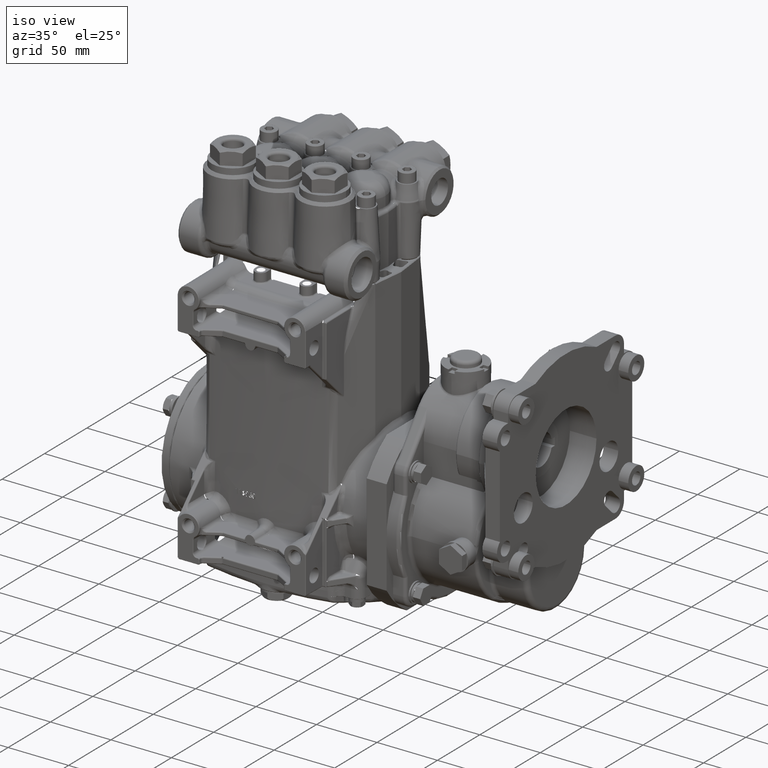
[diagram: clean part render]
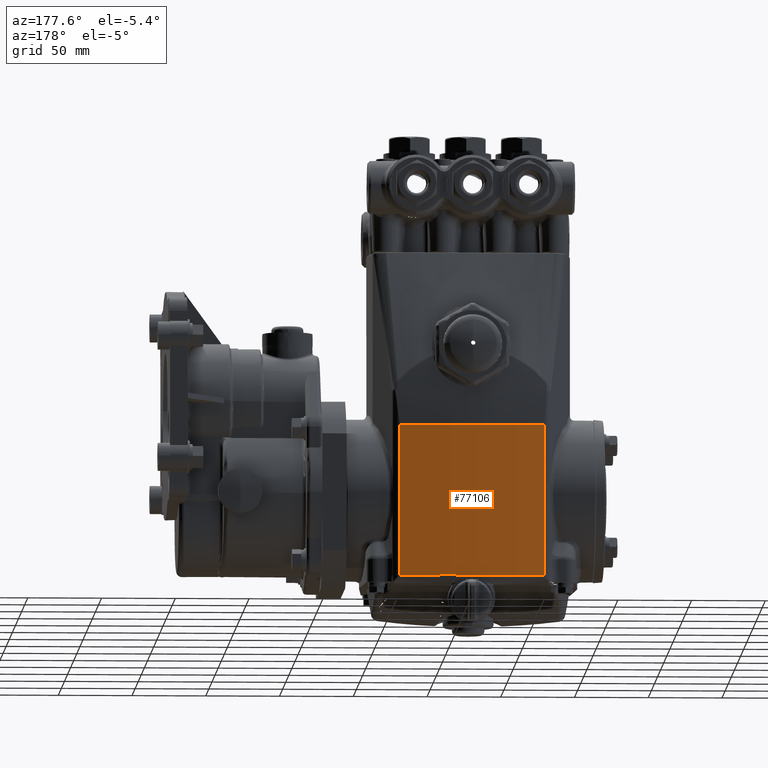
[diagram: tour spotlight — one face highlighted and labeled with its STEP entity id]
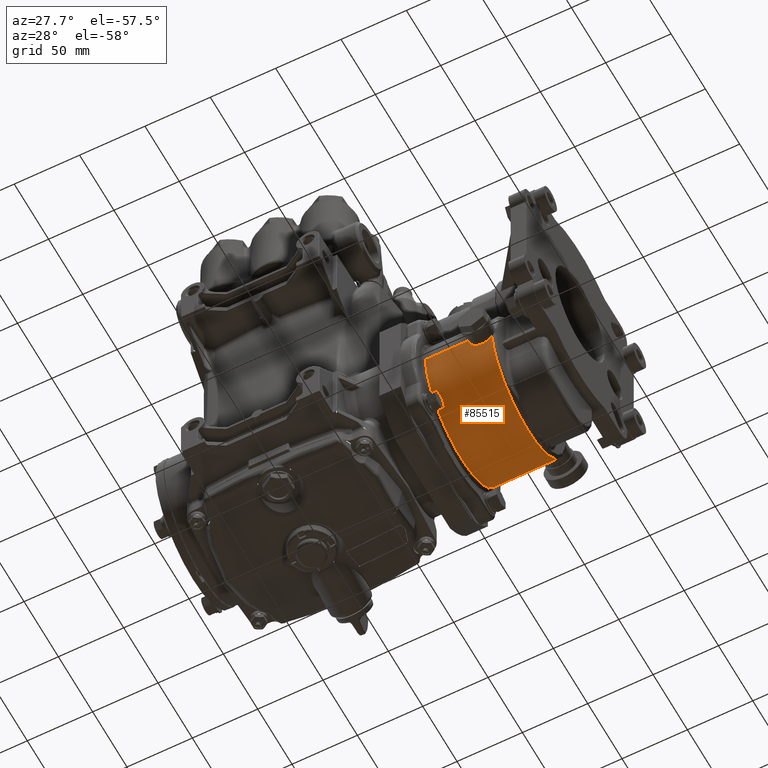
[diagram: tour spotlight — one face highlighted and labeled with its STEP entity id]
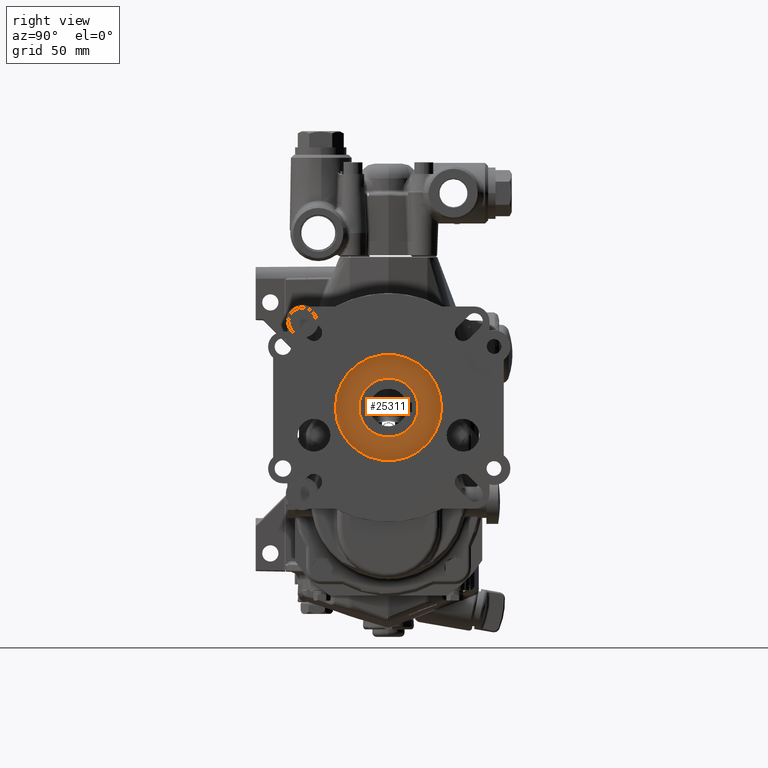
[diagram: tour spotlight — one face highlighted and labeled with its STEP entity id]
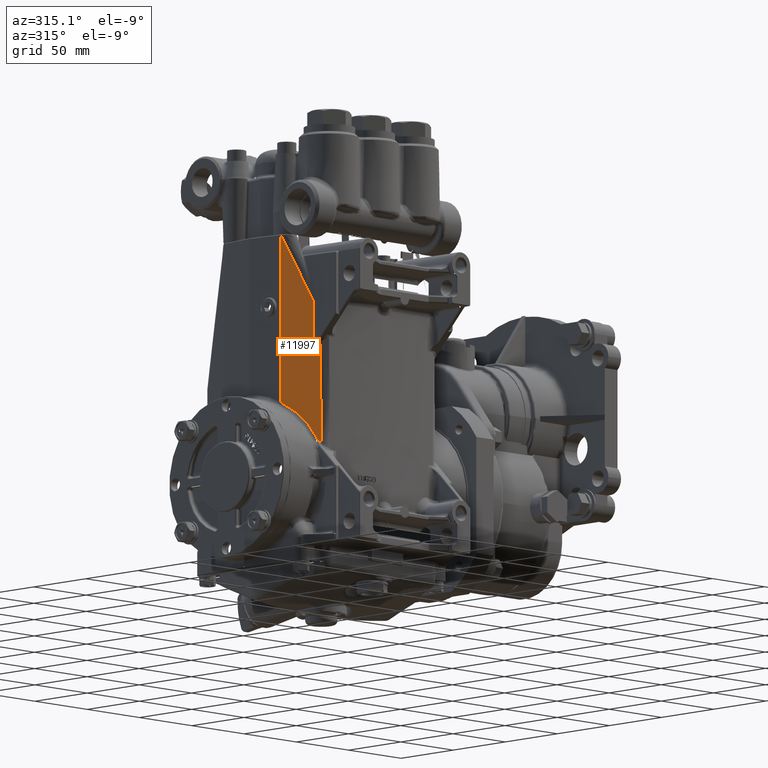
[diagram: tour spotlight — one face highlighted and labeled with its STEP entity id]
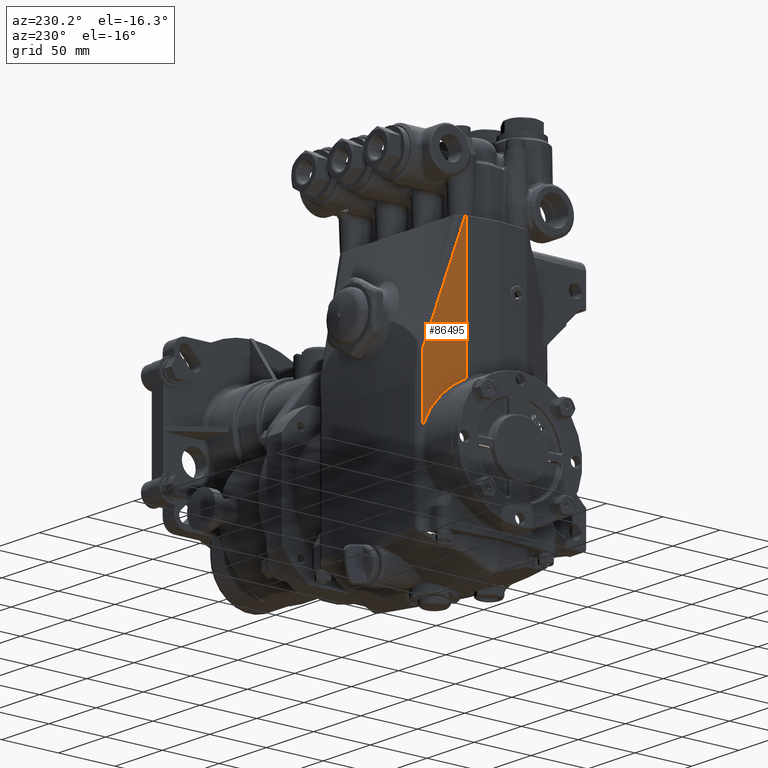
[diagram: tour spotlight — one face highlighted and labeled with its STEP entity id]
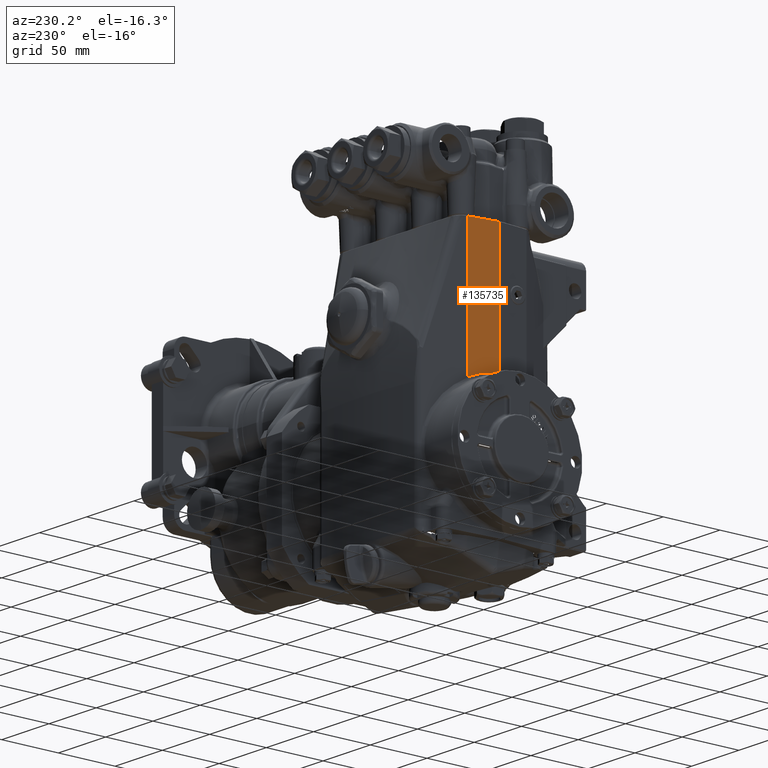
[diagram: tour spotlight — one face highlighted and labeled with its STEP entity id]
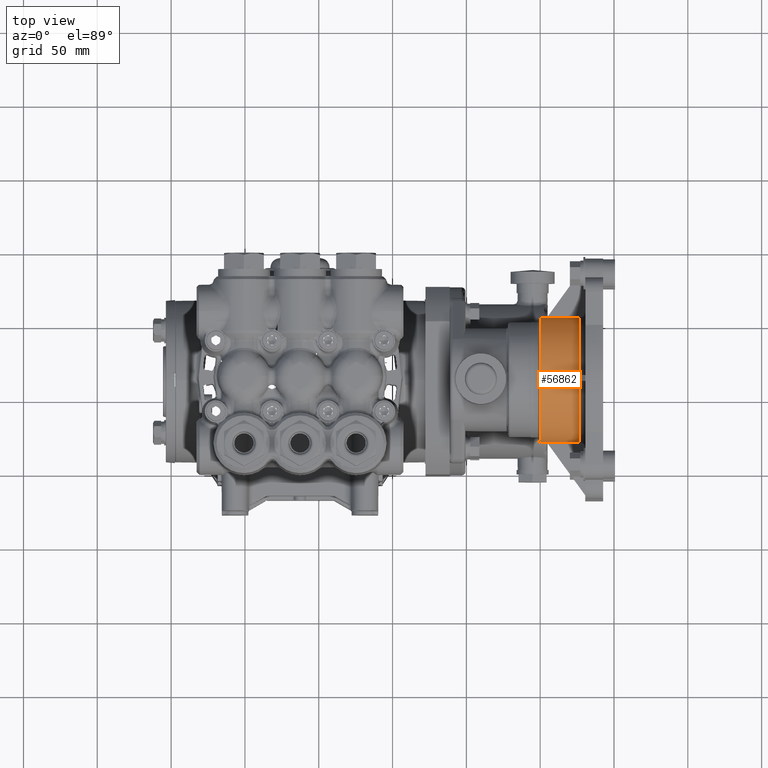
[diagram: tour spotlight — one face highlighted and labeled with its STEP entity id]
A machine part: a face-by-face anatomy tour. The part has 2725 B-rep faces; the first image is the clean iso view, then the 7 largest visible faces are spotlighted one at a time (largest first), each with its STEP entity span.

Face 1 — auxiliary view, entity #77106. In plain terms, the highlighted cylindrical surface (partial cylindrical patch) has radius 400 mm, axis along (-0, -0, -1).
Definition (entity closure, byte-faithful):
#7148 = DIRECTION ( 'NONE',  ( -0.000000000000000000, -0.000000000000000000, -1.000000000000000000 ) ) ;
#16565 = VERTEX_POINT ( 'NONE', #58272 ) ;
#20412 = DIRECTION ( 'NONE',  ( 0.000000000000000000, 0.000000000000000000, 1.000000000000000000 ) ) ;
#27507 = VERTEX_POINT ( 'NONE', #138537 ) ;
#28410 = CARTESIAN_POINT ( 'NONE',  ( 5.406342445548177444, -12.83890584627054210, 3.422867512728321238 ) ) ;
#28515 = ORIENTED_EDGE ( 'NONE', *, *, #127898, .T. ) ;
#29401 = VERTEX_POINT ( 'NONE', #48300 ) ;
#30461 = ORIENTED_EDGE ( 'NONE', *, *, #139759, .F. ) ;
#31025 = LINE ( 'NONE', #95591, #122323 ) ;
#33897 = AXIS2_PLACEMENT_3D ( 'NONE', #56992, #78995, #120087 ) ;
#48300 = CARTESIAN_POINT ( 'NONE',  ( 7.334234948108111496, 2.790672730887743036, -1.281856896720500183 ) ) ;
#49018 = DIRECTION ( 'NONE',  ( 1.000000000000000000, 0.000000000000000000, 0.000000000000000000 ) ) ;
#51228 = CIRCLE ( 'NONE', #137244, 15.74803149606299257 ) ;
#51971 = ORIENTED_EDGE ( 'NONE', *, *, #70125, .F. ) ;
#53790 = DIRECTION ( 'NONE',  ( -0.000000000000000000, 0.000000000000000000, 1.000000000000000000 ) ) ;
#54262 = VECTOR ( 'NONE', #53790, 39.37007874015748143 ) ;
#56992 = CARTESIAN_POINT ( 'NONE',  ( 5.406342445548177444, -12.83890584627054210, -5.317289967586640742 ) ) ;
#58272 = CARTESIAN_POINT ( 'NONE',  ( 3.478449942988243393, 2.790672730887740816, -5.317289967586640742 ) ) ;
#63185 = AXIS2_PLACEMENT_3D ( 'NONE', #28410, #7148, #135426 ) ;
#65861 = LINE ( 'NONE', #77200, #54262 ) ;
#70125 = EDGE_CURVE ( 'NONE', #29401, #27507, #51228, .T. ) ;
#70952 = FACE_OUTER_BOUND ( 'NONE', #81986, .T. ) ;
#77106 = ADVANCED_FACE ( 'NONE', ( #70952 ), #81626, .T. ) ;
#77200 = CARTESIAN_POINT ( 'NONE',  ( 7.334234948108109720, 2.790672730887743036, 3.422867512728321238 ) ) ;
#78715 = EDGE_CURVE ( 'NONE', #125865, #16565, #79184, .T. ) ;
#78995 = DIRECTION ( 'NONE',  ( 0.000000000000000000, 0.000000000000000000, 1.000000000000000000 ) ) ;
#79184 = CIRCLE ( 'NONE', #33897, 15.74803149606298902 ) ;
#81626 = CYLINDRICAL_SURFACE ( 'NONE', #63185, 15.74803149606299257 ) ;
#81986 = EDGE_LOOP ( 'NONE', ( #51971, #30461, #140181, #28515 ) ) ;
#95591 = CARTESIAN_POINT ( 'NONE',  ( 3.478449942988244281, 2.790672730887743036, 3.422867512728321238 ) ) ;
#96221 = CARTESIAN_POINT ( 'NONE',  ( 7.334234948108111496, 2.790672730887740816, -5.317289967586640742 ) ) ;
#103604 = CARTESIAN_POINT ( 'NONE',  ( 5.406342445548177444, -12.83890584627054210, -1.281856896720500183 ) ) ;
#120087 = DIRECTION ( 'NONE',  ( 1.000000000000000000, 0.000000000000000000, 0.000000000000000000 ) ) ;
#122323 = VECTOR ( 'NONE', #20412, 39.37007874015748143 ) ;
#124864 = DIRECTION ( 'NONE',  ( -0.000000000000000000, -0.000000000000000000, 1.000000000000000000 ) ) ;
#125865 = VERTEX_POINT ( 'NONE', #96221 ) ;
#127898 = EDGE_CURVE ( 'NONE', #16565, #27507, #31025, .T. ) ;
#135426 = DIRECTION ( 'NONE',  ( -1.000000000000000000, 0.000000000000000000, 0.000000000000000000 ) ) ;
#137244 = AXIS2_PLACEMENT_3D ( 'NONE', #103604, #124864, #49018 ) ;
#138537 = CARTESIAN_POINT ( 'NONE',  ( 3.478449942988243393, 2.790672730887743036, -1.281856896720500183 ) ) ;
#139759 = EDGE_CURVE ( 'NONE', #125865, #29401, #65861, .T. ) ;
#140181 = ORIENTED_EDGE ( 'NONE', *, *, #78715, .T. ) ;

Face 2 — auxiliary view, entity #85515. In plain terms, the highlighted cylindrical surface (partial cylindrical patch) has radius 52.2986 mm, axis along (1, 0, -0).
Definition (entity closure, byte-faithful):
#17 = EDGE_CURVE ( 'NONE', #68849, #95212, #33365, .T. ) ;
#603 = B_SPLINE_CURVE_WITH_KNOTS ( 'NONE', 3,
 ( #106025, #28794, #74130, #93344, #72038, #115954, #94022, #105340, #117332, #9600 ),
 .UNSPECIFIED., .F., .F.,
 ( 4, 2, 2, 2, 4 ),
 ( 0.000000000000000000, 0.2500000000000000000, 0.5000000000000000000, 0.7500000000000000000, 1.000000000000000000 ),
 .UNSPECIFIED. ) ;
#616 = CARTESIAN_POINT ( 'NONE',  ( 11.66571921534692358, -1.532511359500518200, -3.509546439950654406 ) ) ;
#825 = CARTESIAN_POINT ( 'NONE',  ( 11.26937400014242741, -1.560267745013484531, -3.324107357063388779 ) ) ;
#1113 = CARTESIAN_POINT ( 'NONE',  ( 11.87110764842454103, 2.506324150190539335, -3.519288096129659760 ) ) ;
#1806 = CARTESIAN_POINT ( 'NONE',  ( 11.56619085743980513, 2.491190401297882939, -3.588141400631537969 ) ) ;
#4218 = EDGE_CURVE ( 'NONE', #91247, #60176, #603, .T. ) ;
#4580 = CARTESIAN_POINT ( 'NONE',  ( 11.90911173688676072, 0.4878658072727675710, -5.171565558137820595 ) ) ;
#6931 = CARTESIAN_POINT ( 'NONE',  ( 11.20015049213382063, 2.528473864228697021, -3.387803082831785328 ) ) ;
#7514 = FACE_OUTER_BOUND ( 'NONE', #54884, .T. ) ;
#8300 = CARTESIAN_POINT ( 'NONE',  ( 11.11082097456576712, 2.546486458997966551, -3.158105177233145877 ) ) ;
#8358 = CARTESIAN_POINT ( 'NONE',  ( 11.90911173688676072, -0.7617650781070578470, -4.748995712560808435 ) ) ;
#9600 = CARTESIAN_POINT ( 'NONE',  ( 11.90911173688676072, 1.737496692652591879, -4.748995712560803995 ) ) ;
#9693 = CARTESIAN_POINT ( 'NONE',  ( 11.15886994213382977, 2.536391251999754903, -3.320244480164311618 ) ) ;
#10078 = CARTESIAN_POINT ( 'NONE',  ( 11.36515270453092441, -1.546472735911854413, -3.430626912157781039 ) ) ;
#10105 = VERTEX_POINT ( 'NONE', #115003 ) ;
#11152 = CARTESIAN_POINT ( 'NONE',  ( 11.90911173688676072, -0.2583497715581620224, -5.034783515307406532 ) ) ;
#12175 = CARTESIAN_POINT ( 'NONE',  ( 11.34461349958118070, -1.549069885497775578, -3.413764495067932003 ) ) ;
#12357 = B_SPLINE_CURVE_WITH_KNOTS ( 'NONE', 3,
 ( #108377, #119695, #616, #111678, #123009, #21204, #122306, #43876, #75824, #107674 ),
 .UNSPECIFIED., .F., .F.,
 ( 4, 2, 2, 2, 4 ),
 ( 0.04776203329687385424, 0.04991177254783315392, 0.05206151179879245361, 0.05421125104975174636, 0.05636099030071104604 ),
 .UNSPECIFIED. ) ;
#12457 = CARTESIAN_POINT ( 'NONE',  ( 11.81045584279774374, 2.499971614020960242, -3.549572478344471982 ) ) ;
#13113 = CARTESIAN_POINT ( 'NONE',  ( 11.10911173688676001, 2.546865807272764570, -3.112565558138320032 ) ) ;
#15423 = CARTESIAN_POINT ( 'NONE',  ( 11.90911173688676072, -1.554064896742433532, -3.377140689244282346 ) ) ;
#17547 = CARTESIAN_POINT ( 'NONE',  ( 11.17541500445524782, 2.533140440095563051, -3.350117934317065949 ) ) ;
#19265 = DIRECTION ( 'NONE',  ( 1.000000000000000000, 5.241929486955537873E-17, -1.684286493261702228E-17 ) ) ;
#19620 = CARTESIAN_POINT ( 'NONE',  ( 11.18136133289554124, 2.531999518787593662, -3.359724118027803463 ) ) ;
#20634 = CARTESIAN_POINT ( 'NONE',  ( 11.90911173688676072, 1.737496692652591879, -4.748995712560803995 ) ) ;
#21172 = CARTESIAN_POINT ( 'NONE',  ( 11.90911173688676072, 0.4878658072727642958, -3.112565558137819988 ) ) ;
#21204 = CARTESIAN_POINT ( 'NONE',  ( 11.79969395769424345, -1.540716778038366153, -3.465373040888612088 ) ) ;
#23783 = CARTESIAN_POINT ( 'NONE',  ( 11.89058508314063722, 2.508720963069065668, -3.507289868025476487 ) ) ;
#27159 = AXIS2_PLACEMENT_3D ( 'NONE', #97534, #86232, #30880 ) ;
#28794 = CARTESIAN_POINT ( 'NONE',  ( 11.90911173688676072, 0.5953966468631204378, -5.171565558137820595 ) ) ;
#28879 = CARTESIAN_POINT ( 'NONE',  ( 11.47665519398746525, 2.494763881814314743, -3.572878203959529930 ) ) ;
#30251 = VERTEX_POINT ( 'NONE', #125903 ) ;
#30265 = CARTESIAN_POINT ( 'NONE',  ( 11.23648648546216222, 2.522156555591136939, -3.430707285499883241 ) ) ;
#30880 = DIRECTION ( 'NONE',  ( 0.000000000000000000, 1.000000000000000000, 1.592140647108846431E-15 ) ) ;
#31056 = ORIENTED_EDGE ( 'NONE', *, *, #4218, .F. ) ;
#33040 = CARTESIAN_POINT ( 'NONE',  ( 11.61163880465462839, 2.490773627529920375, -3.589893615706450714 ) ) ;
#33365 = LINE ( 'NONE', #76665, #54395 ) ;
#33393 = CARTESIAN_POINT ( 'NONE',  ( 11.60911173688676001, -1.531906704670103148, -3.512565558137823452 ) ) ;
#33431 = CARTESIAN_POINT ( 'NONE',  ( 11.55659163907238174, -1.532547356715383335, -3.509319114812804674 ) ) ;
#38565 = ORIENTED_EDGE ( 'NONE', *, *, #48364, .F. ) ;
#38771 = ORIENTED_EDGE ( 'NONE', *, *, #80363, .T. ) ;
#40810 = CYLINDRICAL_SURFACE ( 'NONE', #127075, 2.059000000000000608 ) ;
#42682 = CARTESIAN_POINT ( 'NONE',  ( 11.23462512678168679, -1.566324324650735456, -3.253738154422493256 ) ) ;
#43060 = CARTESIAN_POINT ( 'NONE',  ( 11.90911173688676072, -0.3624611573517115271, -4.991296097847390811 ) ) ;
#43392 = CARTESIAN_POINT ( 'NONE',  ( 11.20911173688676143, -1.571134192727236423, -3.138707281139114791 ) ) ;
#43876 = CARTESIAN_POINT ( 'NONE',  ( 11.86975406150793866, -1.548527819171994446, -3.417319895682147557 ) ) ;
#45833 = CARTESIAN_POINT ( 'NONE',  ( 9.915214099091482325, 0.4878658072727642403, -3.112565558137819988 ) ) ;
#45879 = B_SPLINE_CURVE_WITH_KNOTS ( 'NONE', 3,
 ( #117427, #63588, #8300, #82786, #105424, #51524, #84195, #9693, #114631, #17547, #19620, #6931, #60793, #30265, #50156, #52939, #62865, #96212, #139398, #93432, #136611, #28879, #72127, #120205, #1806, #33040, #98270, #86291, #64967, #120873, #86973, #12457, #108893, #1113, #23783, #119507 ),
 .UNSPECIFIED., .F., .F.,
 ( 4, 2, 2, 2, 2, 2, 2, 2, 2, 2, 2, 2, 2, 2, 2, 2, 2, 4 ),
 ( 0.02792420724630427162, 0.02966925434523157504, 0.03141430144415887499, 0.03315934854308617841, 0.03403187209254977807, 0.03490439564201337080, 0.03664944274094062565, 0.03752196629040419062, 0.03839448983986776254, 0.04188458403772223060, 0.04362963113664945769, 0.04537467823557669172, 0.04711972533450392575, 0.04886477243343115284, 0.05060981953235838687, 0.05235486663128562090, 0.05409991373021284800, 0.05584496082914008203 ),
 .UNSPECIFIED. ) ;
#47896 = CARTESIAN_POINT ( 'NONE',  ( 11.90911173688676072, 2.511219316529246015, -3.494038462260095734 ) ) ;
#47926 = DIRECTION ( 'NONE',  ( 1.000000000000000000, 5.241929486955537873E-17, -1.684286493261702228E-17 ) ) ;
#48364 = EDGE_CURVE ( 'NONE', #10105, #107312, #81267, .T. ) ;
#49769 = EDGE_CURVE ( 'NONE', #137458, #61419, #12357, .T. ) ;
#50156 = CARTESIAN_POINT ( 'NONE',  ( 11.24431442548205773, 2.520863546124830545, -3.438855893970473421 ) ) ;
#51524 = CARTESIAN_POINT ( 'NONE',  ( 11.13600658646412178, 2.541068112903332565, -3.268473623365884873 ) ) ;
#51582 = CARTESIAN_POINT ( 'NONE',  ( 11.90911173688676072, 0.3803349676824147596, -5.171565558137820595 ) ) ;
#51777 = ORIENTED_EDGE ( 'NONE', *, *, #49769, .F. ) ;
#52302 = CARTESIAN_POINT ( 'NONE',  ( 11.90911173688676072, 0.2727984951351405396, -5.163167137926945038 ) ) ;
#52638 = CARTESIAN_POINT ( 'NONE',  ( 11.53075883779401778, -1.533304632452667349, -3.505465718405150088 ) ) ;
#52939 = CARTESIAN_POINT ( 'NONE',  ( 11.26060412062010840, 2.518262748369267001, -3.454667079650611150 ) ) ;
#54395 = VECTOR ( 'NONE', #19265, 39.37007874015748143 ) ;
#54409 = CARTESIAN_POINT ( 'NONE',  ( 11.90911173688676072, 0.05876558994159587074, -5.129269252603147144 ) ) ;
#54884 = EDGE_LOOP ( 'NONE', ( #123761, #59498, #101278, #38771, #31056, #97173, #111488, #51777, #59391, #38565 ) ) ;
#55414 = CARTESIAN_POINT ( 'NONE',  ( 11.46783540546138447, -1.536805415400588792, -3.487016738900957868 ) ) ;
#59391 = ORIENTED_EDGE ( 'NONE', *, *, #84684, .F. ) ;
#59498 = ORIENTED_EDGE ( 'NONE', *, *, #17, .T. ) ;
#60176 = VERTEX_POINT ( 'NONE', #20634 ) ;
#60286 = CARTESIAN_POINT ( 'NONE',  ( 11.20911173688675966, -1.571134192727236423, -3.112565558137823540 ) ) ;
#60793 = CARTESIAN_POINT ( 'NONE',  ( 11.21393882176255197, 2.525986287366560834, -3.405539854199413963 ) ) ;
#61419 = VERTEX_POINT ( 'NONE', #15423 ) ;
#62865 = CARTESIAN_POINT ( 'NONE',  ( 11.26905661291616134, 2.516956919905302126, -3.462315605929523699 ) ) ;
#63288 = CARTESIAN_POINT ( 'NONE',  ( 11.43142687917974420, -1.539562894571211871, -3.471896666901473250 ) ) ;
#63588 = CARTESIAN_POINT ( 'NONE',  ( 11.10911173688678666, 2.546865807272759685, -3.135284891215653236 ) ) ;
#63982 = CARTESIAN_POINT ( 'NONE',  ( 11.40848020359724302, -1.541732751794675060, -3.459590084992771430 ) ) ;
#64662 = CARTESIAN_POINT ( 'NONE',  ( 11.30774392534613426, -1.554184695721131160, -3.376871364568180489 ) ) ;
#64967 = CARTESIAN_POINT ( 'NONE',  ( 11.70171571384385700, 2.492722807590285861, -3.581666838960978261 ) ) ;
#65017 = AXIS2_PLACEMENT_3D ( 'NONE', #45833, #111040, #89124 ) ;
#65767 = B_SPLINE_CURVE_WITH_KNOTS ( 'NONE', 3,
 ( #73913, #43392, #87371, #129150, #75337, #139770, #42682, #97295, #97987, #66080, #825, #117117, #64662, #12175, #10078, #63982, #63288, #55414, #86686, #85992, #52638, #33431, #106524, #76733, #118518 ),
 .UNSPECIFIED., .F., .F.,
 ( 4, 2, 2, 2, 2, 2, 2, 2, 2, 2, 1, 2, 4 ),
 ( 0.03184059701078013893, 0.03383077654654189498, 0.03482586631442274178, 0.03582095608230358164, 0.03681604585018442843, 0.03781113561806526829, 0.03980131515382692026, 0.04179149468958856528, 0.04378167422535021724, 0.04477676399323112649, 0.04577185376111203574, 0.04676694352899294499, 0.04776203329687385424 ),
 .UNSPECIFIED. ) ;
#66080 = CARTESIAN_POINT ( 'NONE',  ( 11.26255676771249270, -1.561413154701553063, -3.312744258527412722 ) ) ;
#67301 = EDGE_CURVE ( 'NONE', #30251, #61419, #124401, .T. ) ;
#68849 = VERTEX_POINT ( 'NONE', #121669 ) ;
#70167 = CIRCLE ( 'NONE', #27159, 2.059000000000000608 ) ;
#72038 = CARTESIAN_POINT ( 'NONE',  ( 11.90911173688676072, 1.023473871205231589, -5.103767096607921161 ) ) ;
#72127 = CARTESIAN_POINT ( 'NONE',  ( 11.49860833393043436, 2.493546818200770065, -3.578119045535397280 ) ) ;
#72437 = AXIS2_PLACEMENT_3D ( 'NONE', #21172, #95666, #98420 ) ;
#73913 = CARTESIAN_POINT ( 'NONE',  ( 11.20911173688675966, -1.571134192727236423, -3.112565558137823540 ) ) ;
#74130 = CARTESIAN_POINT ( 'NONE',  ( 11.90911173688676072, 0.7029331194103950464, -5.163167137926944150 ) ) ;
#75337 = CARTESIAN_POINT ( 'NONE',  ( 11.22260561120508982, -1.568551949003873069, -3.216413168707789261 ) ) ;
#75689 = CARTESIAN_POINT ( 'NONE',  ( 11.90911173688676072, -0.04774225665969642624, -5.103767096607923826 ) ) ;
#75824 = CARTESIAN_POINT ( 'NONE',  ( 11.89052296296513056, -1.551333838256695463, -3.398218377661813339 ) ) ;
#76665 = CARTESIAN_POINT ( 'NONE',  ( 3.576482649239076217, 2.546865807272764570, -3.112565558137816879 ) ) ;
#76733 = CARTESIAN_POINT ( 'NONE',  ( 11.59590237547859992, -1.531906704670102481, -3.512565558137822119 ) ) ;
#79960 = B_SPLINE_CURVE_WITH_KNOTS ( 'NONE', 3,
 ( #8358, #83546, #126737, #43060, #11152, #75689, #54409, #52302, #51582, #97656 ),
 .UNSPECIFIED., .F., .F.,
 ( 4, 2, 2, 2, 4 ),
 ( 0.000000000000000000, 0.2500000000000000000, 0.5000000000000000000, 0.7500000000000000000, 1.000000000000000000 ),
 .UNSPECIFIED. ) ;
#80363 = EDGE_CURVE ( 'NONE', #83513, #60176, #70167, .T. ) ;
#81267 = LINE ( 'NONE', #113135, #81840 ) ;
#81840 = VECTOR ( 'NONE', #47926, 39.37007874015748143 ) ;
#82221 = EDGE_CURVE ( 'NONE', #95212, #83513, #45879, .T. ) ;
#82786 = CARTESIAN_POINT ( 'NONE',  ( 11.11766857982397561, 2.544988788535340163, -3.203328351055512169 ) ) ;
#83513 = VERTEX_POINT ( 'NONE', #47896 ) ;
#83546 = CARTESIAN_POINT ( 'NONE',  ( 11.90911173688676072, -0.6658823306098504702, -4.822214873380924693 ) ) ;
#84195 = CARTESIAN_POINT ( 'NONE',  ( 11.14420424103475149, 2.539353322636329846, -3.289495215627535440 ) ) ;
#84684 = EDGE_CURVE ( 'NONE', #107312, #137458, #65767, .T. ) ;
#85515 = ADVANCED_FACE ( 'NONE', ( #7514 ), #40810, .T. ) ;
#85992 = CARTESIAN_POINT ( 'NONE',  ( 11.50541757435899726, -1.534527970524937279, -3.499113674235902582 ) ) ;
#86232 = DIRECTION ( 'NONE',  ( -1.000000000000000000, -5.241929486955537873E-17, 1.684286493261702228E-17 ) ) ;
#86291 = CARTESIAN_POINT ( 'NONE',  ( 11.67929799970035987, 2.491892477396903782, -3.585178056089349585 ) ) ;
#86686 = CARTESIAN_POINT ( 'NONE',  ( 11.48032522501585362, -1.535969679809227495, -3.491492938728659290 ) ) ;
#86973 = CARTESIAN_POINT ( 'NONE',  ( 11.76810794741171939, 2.496519827220524679, -3.565173395018716107 ) ) ;
#87371 = CARTESIAN_POINT ( 'NONE',  ( 11.21164943323337226, -1.570636478202711128, -3.164734500919242244 ) ) ;
#89124 = DIRECTION ( 'NONE',  ( 0.000000000000000000, 1.000000000000000000, 1.592140647108846036E-15 ) ) ;
#89899 = CIRCLE ( 'NONE', #65017, 2.059000000000001052 ) ;
#91247 = VERTEX_POINT ( 'NONE', #4580 ) ;
#93344 = CARTESIAN_POINT ( 'NONE',  ( 11.90911173688676072, 0.9169660246039391671, -5.129269252603145368 ) ) ;
#93432 = CARTESIAN_POINT ( 'NONE',  ( 11.41226411005606067, 2.499571832224384504, -3.551444639661250680 ) ) ;
#94022 = CARTESIAN_POINT ( 'NONE',  ( 11.90911173688676072, 1.338192771897245947, -4.991296097847388147 ) ) ;
#95212 = VERTEX_POINT ( 'NONE', #13113 ) ;
#95666 = DIRECTION ( 'NONE',  ( -1.000000000000000000, -5.241929486955537873E-17, 1.684286493261702228E-17 ) ) ;
#96212 = CARTESIAN_POINT ( 'NONE',  ( 11.31225084347572540, 2.510536249557562272, -3.498781444167559318 ) ) ;
#96785 = DIRECTION ( 'NONE',  ( 0.000000000000000000, -1.000000000000000000, -1.592140647108846431E-15 ) ) ;
#97173 = ORIENTED_EDGE ( 'NONE', *, *, #132613, .F. ) ;
#97295 = CARTESIAN_POINT ( 'NONE',  ( 11.24461119061553127, -1.564527314226117127, -3.277820739169211794 ) ) ;
#97534 = CARTESIAN_POINT ( 'NONE',  ( 11.90911173688676072, 0.4878658072727642958, -3.112565558137819988 ) ) ;
#97656 = CARTESIAN_POINT ( 'NONE',  ( 11.90911173688676072, 0.4878658072727675710, -5.171565558137820595 ) ) ;
#97987 = CARTESIAN_POINT ( 'NONE',  ( 11.25019332463683952, -1.563540135972785849, -3.289623266518556299 ) ) ;
#98270 = CARTESIAN_POINT ( 'NONE',  ( 11.63425955608979656, 2.490917911765697212, -3.589291616241699234 ) ) ;
#98420 = DIRECTION ( 'NONE',  ( 0.000000000000000000, 1.000000000000000000, 1.592140647108846431E-15 ) ) ;
#101278 = ORIENTED_EDGE ( 'NONE', *, *, #82221, .T. ) ;
#105340 = CARTESIAN_POINT ( 'NONE',  ( 11.90911173688676072, 1.541953189246536127, -4.885017018338796646 ) ) ;
#105424 = CARTESIAN_POINT ( 'NONE',  ( 11.12273907624107139, 2.543885666286383795, -3.225390076711832865 ) ) ;
#106025 = CARTESIAN_POINT ( 'NONE',  ( 11.90911173688676072, 0.4878658072727675710, -5.171565558137820595 ) ) ;
#106524 = CARTESIAN_POINT ( 'NONE',  ( 11.58267400169394534, -1.532037642495142515, -3.511906003831161804 ) ) ;
#107312 = VERTEX_POINT ( 'NONE', #60286 ) ;
#107674 = CARTESIAN_POINT ( 'NONE',  ( 11.90911173688676072, -1.554064896742433532, -3.377140689244282346 ) ) ;
#108377 = CARTESIAN_POINT ( 'NONE',  ( 11.60911173688676001, -1.531906704670103148, -3.512565558137823452 ) ) ;
#108893 = CARTESIAN_POINT ( 'NONE',  ( 11.83105966292663958, 2.501952919003874953, -3.540409468183905783 ) ) ;
#111040 = DIRECTION ( 'NONE',  ( 1.000000000000000000, 5.241929486955537873E-17, -1.684286493261702228E-17 ) ) ;
#111488 = ORIENTED_EDGE ( 'NONE', *, *, #67301, .T. ) ;
#111678 = CARTESIAN_POINT ( 'NONE',  ( 11.72095814576214501, -1.534812889055334750, -3.497648157023036219 ) ) ;
#113135 = CARTESIAN_POINT ( 'NONE',  ( 3.576482649239076217, -1.571134192727236645, -3.112565558137823540 ) ) ;
#114631 = CARTESIAN_POINT ( 'NONE',  ( 11.16417573813899722, 2.535334953264388513, -3.330394737333732813 ) ) ;
#115003 = CARTESIAN_POINT ( 'NONE',  ( 9.915214099091482325, -1.571134192727236423, -3.112565558137823984 ) ) ;
#115954 = CARTESIAN_POINT ( 'NONE',  ( 11.90911173688676072, 1.234081386103696332, -5.034783515307403867 ) ) ;
#117117 = CARTESIAN_POINT ( 'NONE',  ( 11.29123121211047120, -1.556717842510771499, -3.356775758193528691 ) ) ;
#117332 = CARTESIAN_POINT ( 'NONE',  ( 11.90911173688676072, 1.641613945155384169, -4.822214873380922029 ) ) ;
#117427 = CARTESIAN_POINT ( 'NONE',  ( 11.10911173688676001, 2.546865807272764570, -3.112565558138320032 ) ) ;
#118518 = CARTESIAN_POINT ( 'NONE',  ( 11.60911173688676001, -1.531906704670103148, -3.512565558137823452 ) ) ;
#119232 = EDGE_CURVE ( 'NONE', #10105, #68849, #89899, .T. ) ;
#119507 = CARTESIAN_POINT ( 'NONE',  ( 11.90911173688676072, 2.511219316529246015, -3.494038462260095734 ) ) ;
#119695 = CARTESIAN_POINT ( 'NONE',  ( 11.63764854192263343, -1.531906704670103148, -3.512565558137823007 ) ) ;
#120205 = CARTESIAN_POINT ( 'NONE',  ( 11.54329473623343638, 2.491759561002159007, -3.585752826552290440 ) ) ;
#120873 = CARTESIAN_POINT ( 'NONE',  ( 11.74634059521507901, 2.495047852825918344, -3.571616578615018245 ) ) ;
#121669 = CARTESIAN_POINT ( 'NONE',  ( 9.915214099091482325, 2.546865807272765014, -3.112565558137816879 ) ) ;
#122306 = CARTESIAN_POINT ( 'NONE',  ( 11.82399050942379404, -1.543177635720990093, -3.451146037121756827 ) ) ;
#123009 = CARTESIAN_POINT ( 'NONE',  ( 11.74832684065561494, -1.536536960868262414, -3.488615897395064280 ) ) ;
#123761 = ORIENTED_EDGE ( 'NONE', *, *, #119232, .T. ) ;
#124401 = CIRCLE ( 'NONE', #72437, 2.059000000000000608 ) ;
#125903 = CARTESIAN_POINT ( 'NONE',  ( 11.90911173688676072, -0.7617650781070578470, -4.748995712560808435 ) ) ;
#126581 = DIRECTION ( 'NONE',  ( 1.000000000000000000, 5.241929486955537873E-17, -1.684286493261702228E-17 ) ) ;
#126737 = CARTESIAN_POINT ( 'NONE',  ( 11.90911173688676072, -0.5662215747010026501, -4.885017018338797534 ) ) ;
#127075 = AXIS2_PLACEMENT_3D ( 'NONE', #139302, #126581, #96785 ) ;
#129150 = CARTESIAN_POINT ( 'NONE',  ( 11.21938428597502124, -1.569161679202498050, -3.203598433298046722 ) ) ;
#132613 = EDGE_CURVE ( 'NONE', #30251, #91247, #79960, .T. ) ;
#136611 = CARTESIAN_POINT ( 'NONE',  ( 11.43352208421870486, 2.497772404670408619, -3.559558939788360465 ) ) ;
#137458 = VERTEX_POINT ( 'NONE', #33393 ) ;
#139302 = CARTESIAN_POINT ( 'NONE',  ( 3.576482649239076217, 0.4878658072727639072, -3.112565558137819988 ) ) ;
#139398 = CARTESIAN_POINT ( 'NONE',  ( 11.35021142979270259, 2.505668433601713652, -3.522850187732899485 ) ) ;
#139770 = CARTESIAN_POINT ( 'NONE',  ( 11.23022121697053599, -1.567134199837399100, -3.241458092165824478 ) ) ;

Face 3 — right view, entity #25311. In plain terms, the highlighted planar face has unit normal (1, 0, -0).
Definition (entity closure, byte-faithful):
#2211 = CIRCLE ( 'NONE', #38485, 0.7874015748031496509 ) ;
#3134 = CARTESIAN_POINT ( 'NONE',  ( 12.62521409909148318, -0.2995357675303893519, -0.6015655581378213101 ) ) ;
#12923 = ORIENTED_EDGE ( 'NONE', *, *, #127254, .F. ) ;
#12988 = EDGE_CURVE ( 'NONE', #69128, #63132, #33265, .T. ) ;
#13450 = PLANE ( 'NONE',  #60103 ) ;
#16523 = ORIENTED_EDGE ( 'NONE', *, *, #36230, .T. ) ;
#19840 = DIRECTION ( 'NONE',  ( 0.000000000000000000, -1.000000000000000000, -1.647987302177966542E-15 ) ) ;
#22984 = CIRCLE ( 'NONE', #34294, 1.415000000000000036 ) ;
#25298 = CARTESIAN_POINT ( 'NONE',  ( 12.62521409909148318, 0.4878658072727602990, -0.6015655581378199779 ) ) ;
#25311 = ADVANCED_FACE ( 'NONE', ( #32655, #97902 ), #13450, .T. ) ;
#32655 = FACE_OUTER_BOUND ( 'NONE', #103838, .T. ) ;
#33265 = CIRCLE ( 'NONE', #116945, 0.7874015748031496509 ) ;
#34294 = AXIS2_PLACEMENT_3D ( 'NONE', #25298, #77811, #111762 ) ;
#36230 = EDGE_CURVE ( 'NONE', #95061, #93947, #129119, .T. ) ;
#38256 = EDGE_CURVE ( 'NONE', #93947, #95061, #22984, .T. ) ;
#38485 = AXIS2_PLACEMENT_3D ( 'NONE', #117659, #48443, #19840 ) ;
#38683 = DIRECTION ( 'NONE',  ( 0.000000000000000000, -1.000000000000000000, -1.641039430823055701E-15 ) ) ;
#45366 = DIRECTION ( 'NONE',  ( 1.000000000000000000, 5.241929486955537873E-17, -1.684286493261702228E-17 ) ) ;
#46043 = CARTESIAN_POINT ( 'NONE',  ( 12.62521409909148318, 0.4878658072727602990, -0.6015655581378199779 ) ) ;
#48443 = DIRECTION ( 'NONE',  ( 1.000000000000000000, 5.241929486955537873E-17, -1.684286493261702228E-17 ) ) ;
#52153 = AXIS2_PLACEMENT_3D ( 'NONE', #71281, #125136, #38683 ) ;
#56705 = DIRECTION ( 'NONE',  ( 5.241929486955535408E-17, -1.000000000000000000, -1.623701173514290849E-15 ) ) ;
#58242 = CARTESIAN_POINT ( 'NONE',  ( 12.62521409909148318, 0.4878658072727602990, -0.6015655581378199779 ) ) ;
#60103 = AXIS2_PLACEMENT_3D ( 'NONE', #46043, #45366, #56705 ) ;
#63132 = VERTEX_POINT ( 'NONE', #137941 ) ;
#69128 = VERTEX_POINT ( 'NONE', #3134 ) ;
#71127 = ORIENTED_EDGE ( 'NONE', *, *, #12988, .F. ) ;
#71281 = CARTESIAN_POINT ( 'NONE',  ( 12.62521409909148318, 0.4878658072727602990, -0.6015655581378199779 ) ) ;
#73113 = DIRECTION ( 'NONE',  ( 1.000000000000000000, 5.241929486955537873E-17, -1.684286493261702228E-17 ) ) ;
#77811 = DIRECTION ( 'NONE',  ( 1.000000000000000000, 5.241929486955537873E-17, -1.684286493261702228E-17 ) ) ;
#86362 = EDGE_LOOP ( 'NONE', ( #71127, #12923 ) ) ;
#93947 = VERTEX_POINT ( 'NONE', #130944 ) ;
#95061 = VERTEX_POINT ( 'NONE', #113917 ) ;
#97902 = FACE_BOUND ( 'NONE', #86362, .T. ) ;
#103838 = EDGE_LOOP ( 'NONE', ( #119747, #16523 ) ) ;
#111762 = DIRECTION ( 'NONE',  ( 0.000000000000000000, -1.000000000000000000, -1.641039430823055701E-15 ) ) ;
#113917 = CARTESIAN_POINT ( 'NONE',  ( 12.62521409909148318, 1.902865807272760446, -0.6015655581378178685 ) ) ;
#115618 = DIRECTION ( 'NONE',  ( 0.000000000000000000, -1.000000000000000000, -1.647987302177966542E-15 ) ) ;
#116945 = AXIS2_PLACEMENT_3D ( 'NONE', #58242, #73113, #115618 ) ;
#117659 = CARTESIAN_POINT ( 'NONE',  ( 12.62521409909148318, 0.4878658072727602990, -0.6015655581378199779 ) ) ;
#119747 = ORIENTED_EDGE ( 'NONE', *, *, #38256, .T. ) ;
#125136 = DIRECTION ( 'NONE',  ( 1.000000000000000000, 5.241929486955537873E-17, -1.684286493261702228E-17 ) ) ;
#127254 = EDGE_CURVE ( 'NONE', #63132, #69128, #2211, .T. ) ;
#129119 = CIRCLE ( 'NONE', #52153, 1.415000000000000036 ) ;
#130944 = CARTESIAN_POINT ( 'NONE',  ( 12.62521409909148318, -0.9271341927272397365, -0.6015655581378223093 ) ) ;
#137941 = CARTESIAN_POINT ( 'NONE',  ( 12.62521409909148318, 1.275267382075909950, -0.6015655581378188677 ) ) ;

Face 4 — auxiliary view, entity #11997. In plain terms, the highlighted planar face has unit normal (0.9199, 0.3922, -0).
Definition (entity closure, byte-faithful):
#697 = ORIENTED_EDGE ( 'NONE', *, *, #36505, .T. ) ;
#1714 = VERTEX_POINT ( 'NONE', #139744 ) ;
#1932 = EDGE_CURVE ( 'NONE', #1714, #136991, #133285, .T. ) ;
#2927 = FACE_OUTER_BOUND ( 'NONE', #72769, .T. ) ;
#3065 = LINE ( 'NONE', #88901, #84059 ) ;
#3525 = CARTESIAN_POINT ( 'NONE',  ( 3.051013967715049180, -1.112388850251797345, 2.329456720525639568 ) ) ;
#4028 = EDGE_CURVE ( 'NONE', #57530, #29441, #44001, .T. ) ;
#4472 = VECTOR ( 'NONE', #124271, 39.37007874015748143 ) ;
#4964 = CARTESIAN_POINT ( 'NONE',  ( 2.821344883347278287, -0.5736622520594298891, 3.403087852800341206 ) ) ;
#5501 =( BOUNDED_CURVE ( )  B_SPLINE_CURVE ( 3, ( #97719, #67154, #55141, #110355 ),
 .UNSPECIFIED., .F., .F. ) 
 B_SPLINE_CURVE_WITH_KNOTS ( ( 4, 4 ),
 ( 0.6641927721116139827, 1.014875295558134605 ),
 .UNSPECIFIED. ) 
 CURVE ( )  GEOMETRIC_REPRESENTATION_ITEM ( )  RATIONAL_B_SPLINE_CURVE ( ( 1.000000000000000000, 0.9897780434150711404, 0.9897780434150711404, 1.000000000000000000 ) ) 
 REPRESENTATION_ITEM ( '' )  );
#6314 = CARTESIAN_POINT ( 'NONE',  ( 3.271745204766412840, -1.630150258056497936, -0.6888294631972187165 ) ) ;
#7404 = CARTESIAN_POINT ( 'NONE',  ( 3.005788536397237642, -1.006305165398686752, -1.351733331543174543 ) ) ;
#7763 = CARTESIAN_POINT ( 'NONE',  ( 2.821344883347278287, -0.5736622520594298891, 3.403087852800341206 ) ) ;
#11997 = ADVANCED_FACE ( 'NONE', ( #2927 ), #122705, .F. ) ;
#15900 = EDGE_CURVE ( 'NONE', #102273, #33299, #5501, .T. ) ;
#15995 = ORIENTED_EDGE ( 'NONE', *, *, #4028, .T. ) ;
#16294 = CARTESIAN_POINT ( 'NONE',  ( 2.836240008423618786, -0.6086012168927515953, 3.320950637227268576 ) ) ;
#18367 = CARTESIAN_POINT ( 'NONE',  ( 3.269547084134892145, -1.624994204713509083, -0.1338022671391425333 ) ) ;
#23236 = EDGE_CURVE ( 'NONE', #136991, #102273, #77962, .T. ) ;
#26071 = CARTESIAN_POINT ( 'NONE',  ( 2.815154740658553312, -0.5591422546370415914, -1.107859512791638190 ) ) ;
#29441 = VERTEX_POINT ( 'NONE', #80222 ) ;
#29669 = CARTESIAN_POINT ( 'NONE',  ( 3.189727612192883477, -1.437764509836632509, 0.3230668656847510700 ) ) ;
#30368 = CARTESIAN_POINT ( 'NONE',  ( 3.275280310580702015, -1.638442429964722669, -1.581588396008591246 ) ) ;
#33299 = VERTEX_POINT ( 'NONE', #123310 ) ;
#34605 = EDGE_CURVE ( 'NONE', #50795, #1714, #81796, .T. ) ;
#34823 = CARTESIAN_POINT ( 'NONE',  ( 2.810706989075904438, -0.5487093220274081862, 3.422867512728321238 ) ) ;
#36505 = EDGE_CURVE ( 'NONE', #29441, #61129, #3065, .T. ) ;
#37552 = CARTESIAN_POINT ( 'NONE',  ( 3.189727612192882145, -1.437764509836631399, 1.564538503256032165 ) ) ;
#38209 = CARTESIAN_POINT ( 'NONE',  ( 3.277954591927696892, -1.644715396553332987, -2.257051861509339119 ) ) ;
#38267 = CARTESIAN_POINT ( 'NONE',  ( 2.826309925039391491, -0.5853085736705365694, 3.375708780942650478 ) ) ;
#38358 = CARTESIAN_POINT ( 'NONE',  ( 3.267348612782912110, -1.619837328698019219, 0.4212249198853835197 ) ) ;
#38983 = CARTESIAN_POINT ( 'NONE',  ( 3.143995251114567235, -1.330491737888040316, 1.816723616257983398 ) ) ;
#42062 = CARTESIAN_POINT ( 'NONE',  ( 3.152680818695750453, -1.350865164674304619, -1.726843335586037087 ) ) ;
#44001 =( BOUNDED_CURVE ( )  B_SPLINE_CURVE ( 3, ( #115430, #53022, #29669, #64357 ),
 .UNSPECIFIED., .F., .T. ) 
 B_SPLINE_CURVE_WITH_KNOTS ( ( 4, 4 ),
 ( 2.219644354624773719, 3.429037800665980296 ),
 .UNSPECIFIED. ) 
 CURVE ( )  GEOMETRIC_REPRESENTATION_ITEM ( )  RATIONAL_B_SPLINE_CURVE ( ( 1.000000000000000000, 0.8817830348324078305, 0.8817830348324078305, 1.000000000000000000 ) ) 
 REPRESENTATION_ITEM ( '' )  );
#46185 = ORIENTED_EDGE ( 'NONE', *, *, #23236, .T. ) ;
#46771 = CARTESIAN_POINT ( 'NONE',  ( 2.929221291823136841, -0.8267041045289942325, 2.808217532959611962 ) ) ;
#47550 = CARTESIAN_POINT ( 'NONE',  ( 2.815154740658553312, -0.5591422546370415914, 3.422867512728321238 ) ) ;
#49865 = CARTESIAN_POINT ( 'NONE',  ( 2.815154740658553312, -0.5591422546370415914, 3.403182473358240312 ) ) ;
#50627 = CARTESIAN_POINT ( 'NONE',  ( 3.240118994565221122, -1.555965782238578177, -2.193065219359057849 ) ) ;
#50795 = VERTEX_POINT ( 'NONE', #7763 ) ;
#51623 = CARTESIAN_POINT ( 'NONE',  ( 3.276617515791671043, -1.641579064642278318, -1.919320127097728479 ) ) ;
#53022 = CARTESIAN_POINT ( 'NONE',  ( 3.219070053407190546, -1.506592030012269934, 0.3330332944902362202 ) ) ;
#55141 = CARTESIAN_POINT ( 'NONE',  ( 3.264351021689923638, -1.612805985943537967, -2.230254989172151703 ) ) ;
#57530 = VERTEX_POINT ( 'NONE', #38358 ) ;
#61129 = VERTEX_POINT ( 'NONE', #37552 ) ;
#61285 = CARTESIAN_POINT ( 'NONE',  ( 2.815154740658553312, -0.5591422546370415914, -1.107859512791638190 ) ) ;
#62981 = B_SPLINE_CURVE_WITH_KNOTS ( 'NONE', 3,
 ( #135354, #80837, #136080, #38983, #3525, #46771, #16294, #112694, #38267, #4964 ),
 .UNSPECIFIED., .F., .F.,
 ( 4, 3, 3, 4 ),
 ( 0.4066979116981916387, 0.4324590888153141965, 0.5895890021034427830, 0.5979794710454728879 ),
 .UNSPECIFIED. ) ;
#64357 = CARTESIAN_POINT ( 'NONE',  ( 3.189727612192883477, -1.437764509836631399, 0.3948602363697568118 ) ) ;
#67154 = CARTESIAN_POINT ( 'NONE',  ( 3.251608906554719347, -1.582917259912081542, -2.208705833926026152 ) ) ;
#72233 = CARTESIAN_POINT ( 'NONE',  ( 3.273942975998445526, -1.635305491825540303, -1.243856668250521658 ) ) ;
#72769 = EDGE_LOOP ( 'NONE', ( #109176, #46185, #103301, #104679, #15995, #697, #126312, #106370 ) ) ;
#75214 = B_SPLINE_CURVE_WITH_KNOTS ( 'NONE', 3,
 ( #38209, #51623, #30368, #72233, #6314, #18367, #125379 ),
 .UNSPECIFIED., .F., .F.,
 ( 4, 3, 4 ),
 ( 0.07773400629815886698, 0.1034704757864033792, 0.1457657046736837714 ),
 .UNSPECIFIED. ) ;
#75819 = EDGE_CURVE ( 'NONE', #33299, #57530, #75214, .T. ) ;
#77962 =( BOUNDED_CURVE ( )  B_SPLINE_CURVE ( 3, ( #61285, #7404, #42062, #50627 ),
 .UNSPECIFIED., .F., .F. ) 
 B_SPLINE_CURVE_WITH_KNOTS ( ( 4, 4 ),
 ( 2.070085784873913592, 2.727152290320088657 ),
 .UNSPECIFIED. ) 
 CURVE ( )  GEOMETRIC_REPRESENTATION_ITEM ( )  RATIONAL_B_SPLINE_CURVE ( ( 1.000000000000000000, 0.9643444099698005312, 0.9643444099698005312, 1.000000000000000000 ) ) 
 REPRESENTATION_ITEM ( '' )  );
#80222 = CARTESIAN_POINT ( 'NONE',  ( 3.189727612192883477, -1.437764509836631399, 0.3948602363697568118 ) ) ;
#80837 = CARTESIAN_POINT ( 'NONE',  ( 3.174483491833444138, -1.402006919187100964, 1.648600207590015909 ) ) ;
#81796 = LINE ( 'NONE', #49865, #4472 ) ;
#84059 = VECTOR ( 'NONE', #100214, 39.37007874015748143 ) ;
#88901 = CARTESIAN_POINT ( 'NONE',  ( 3.189727612192883477, -1.437764509836631399, 3.422867512728321238 ) ) ;
#91043 = VECTOR ( 'NONE', #100014, 39.37007874015748143 ) ;
#97719 = CARTESIAN_POINT ( 'NONE',  ( 3.240118994565221122, -1.555965782238578177, -2.193065219359057849 ) ) ;
#100014 = DIRECTION ( 'NONE',  ( 0.000000000000000000, 0.000000000000000000, -1.000000000000000000 ) ) ;
#100214 = DIRECTION ( 'NONE',  ( 0.000000000000000000, 0.000000000000000000, 1.000000000000000000 ) ) ;
#102193 = DIRECTION ( 'NONE',  ( -0.3921676722171311691, 0.9198937530322708334, 0.000000000000000000 ) ) ;
#102273 = VERTEX_POINT ( 'NONE', #126174 ) ;
#103301 = ORIENTED_EDGE ( 'NONE', *, *, #15900, .T. ) ;
#104679 = ORIENTED_EDGE ( 'NONE', *, *, #75819, .T. ) ;
#106370 = ORIENTED_EDGE ( 'NONE', *, *, #34605, .T. ) ;
#109176 = ORIENTED_EDGE ( 'NONE', *, *, #1932, .T. ) ;
#110355 = CARTESIAN_POINT ( 'NONE',  ( 3.277954591927696892, -1.644715396553332987, -2.257051861509339119 ) ) ;
#112694 = CARTESIAN_POINT ( 'NONE',  ( 2.831274966731505582, -0.5969548952816440268, 3.348329709084959749 ) ) ;
#115430 = CARTESIAN_POINT ( 'NONE',  ( 3.267348612782912110, -1.619837328698019219, 0.4212249198853835197 ) ) ;
#119160 = AXIS2_PLACEMENT_3D ( 'NONE', #34823, #121286, #102193 ) ;
#121286 = DIRECTION ( 'NONE',  ( 0.9198937530322709444, 0.3921676722171312246, -0.000000000000000000 ) ) ;
#122705 = PLANE ( 'NONE',  #119160 ) ;
#123310 = CARTESIAN_POINT ( 'NONE',  ( 3.277954591927696892, -1.644715396553332987, -2.257051861509339119 ) ) ;
#124271 = DIRECTION ( 'NONE',  ( -0.3921676722171311691, 0.9198937530322708334, 0.000000000000000000 ) ) ;
#125379 = CARTESIAN_POINT ( 'NONE',  ( 3.267348612782912110, -1.619837328698019219, 0.4212249198853835197 ) ) ;
#126174 = CARTESIAN_POINT ( 'NONE',  ( 3.240118994565221122, -1.555965782238578177, -2.193065219359057849 ) ) ;
#126312 = ORIENTED_EDGE ( 'NONE', *, *, #134917, .T. ) ;
#133285 = LINE ( 'NONE', #47550, #91043 ) ;
#134917 = EDGE_CURVE ( 'NONE', #61129, #50795, #62981, .T. ) ;
#135354 = CARTESIAN_POINT ( 'NONE',  ( 3.189727612192882145, -1.437764509836631399, 1.564538503256032165 ) ) ;
#136080 = CARTESIAN_POINT ( 'NONE',  ( 3.159239371474005686, -1.366249328537570529, 1.732661911923999654 ) ) ;
#136991 = VERTEX_POINT ( 'NONE', #26071 ) ;
#139744 = CARTESIAN_POINT ( 'NONE',  ( 2.815154740658553312, -0.5591422546370415914, 3.403182473358240312 ) ) ;

Face 5 — auxiliary view, entity #86495. In plain terms, the highlighted planar face has unit normal (0.9199, -0.3922, 0).
Definition (entity closure, byte-faithful):
#2684 = AXIS2_PLACEMENT_3D ( 'NONE', #94736, #137930, #40840 ) ;
#5346 = CARTESIAN_POINT ( 'NONE',  ( 2.889906945996855381, 1.710217457110992934, 2.878422106682543280 ) ) ;
#6044 = CARTESIAN_POINT ( 'NONE',  ( 3.277044715107092276, 2.618312745419669074, -0.2624942985515791860 ) ) ;
#6408 = VERTEX_POINT ( 'NONE', #100949 ) ;
#7439 = CARTESIAN_POINT ( 'NONE',  ( 3.083556486795055562, 2.164454293744496383, 1.318691402611236851 ) ) ;
#10669 = CARTESIAN_POINT ( 'NONE',  ( 3.290065729397549266, 2.648855675274700339, -0.3720936193829543215 ) ) ;
#11749 = CARTESIAN_POINT ( 'NONE',  ( 3.290070593589886627, 2.648867085037561964, -2.527802745218595160 ) ) ;
#13847 = CARTESIAN_POINT ( 'NONE',  ( 2.895548325738180218, 1.723450240815956658, 2.831833965356226557 ) ) ;
#17507 =( BOUNDED_CURVE ( )  B_SPLINE_CURVE ( 3, ( #49286, #125116, #39350, #82624 ),
 .UNSPECIFIED., .F., .T. ) 
 B_SPLINE_CURVE_WITH_KNOTS ( ( 4, 4 ),
 ( 3.400563429013380379, 4.213099522305363109 ),
 .UNSPECIFIED. ) 
 CURVE ( )  GEOMETRIC_REPRESENTATION_ITEM ( )  RATIONAL_B_SPLINE_CURVE ( ( 1.000000000000000000, 0.9457346828002768380, 0.9457346828002768380, 1.000000000000000000 ) ) 
 REPRESENTATION_ITEM ( '' )  );
#18773 = CARTESIAN_POINT ( 'NONE',  ( 3.169578432874740948, 2.366232911484735357, 0.6268659906597982001 ) ) ;
#18877 = FACE_OUTER_BOUND ( 'NONE', #65289, .T. ) ;
#19448 = CARTESIAN_POINT ( 'NONE',  ( 3.278207525667938604, 2.621040308772444760, -0.2722767116456167868 ) ) ;
#20756 = DIRECTION ( 'NONE',  ( 0.3921676722171297813, 0.9198937530322716105, 0.000000000000000000 ) ) ;
#22123 = CARTESIAN_POINT ( 'NONE',  ( 2.815154740658553312, 1.534873869182569406, 3.403182473358240312 ) ) ;
#24480 = CARTESIAN_POINT ( 'NONE',  ( 2.953060732329933380, 1.858355046320458559, 2.363072771868785615 ) ) ;
#25208 = CARTESIAN_POINT ( 'NONE',  ( 2.958740586821766883, 1.871678078878525442, 2.317231495070704916 ) ) ;
#25907 = CARTESIAN_POINT ( 'NONE',  ( 2.868314606280898182, 1.659569074224752416, 3.057367987625689842 ) ) ;
#26608 = CARTESIAN_POINT ( 'NONE',  ( 2.902118162278012115, 1.738860872593090523, 2.777712307612778986 ) ) ;
#27329 = CARTESIAN_POINT ( 'NONE',  ( 3.284212670152134805, 2.635126362489818685, -0.3227991246160183958 ) ) ;
#28017 = CARTESIAN_POINT ( 'NONE',  ( 3.085729488401167675, 2.169551426283468309, 1.301348702528013712 ) ) ;
#29423 = CARTESIAN_POINT ( 'NONE',  ( 3.084058198784633831, 2.165631141704510210, 1.314687523857085427 ) ) ;
#30096 = CARTESIAN_POINT ( 'NONE',  ( 3.083413970236584589, 2.164119997724886169, 1.319828737610377223 ) ) ;
#33996 = EDGE_CURVE ( 'NONE', #92082, #65374, #17507, .T. ) ;
#34425 = CARTESIAN_POINT ( 'NONE',  ( 2.896681292067505353, 1.726107799616888316, 2.822494172766205622 ) ) ;
#35423 = CARTESIAN_POINT ( 'NONE',  ( 2.815154740658553312, 1.534873869182569406, 3.422867512728321238 ) ) ;
#36532 = CARTESIAN_POINT ( 'NONE',  ( 3.015776866807365231, 2.005466051146424622, 1.859851859353723880 ) ) ;
#37651 = VERTEX_POINT ( 'NONE', #22123 ) ;
#37927 = CARTESIAN_POINT ( 'NONE',  ( 3.036685230527434332, 2.054510055879093855, 1.692855893612424723 ) ) ;
#39341 = CARTESIAN_POINT ( 'NONE',  ( 3.071114255817094740, 2.135268995308998718, 1.417991597985817531 ) ) ;
#39350 = CARTESIAN_POINT ( 'NONE',  ( 3.053235060477047735, 2.093330403050430721, -1.412430675210333497 ) ) ;
#40740 = CARTESIAN_POINT ( 'NONE',  ( 3.213381444988613556, 2.468980078225291308, 0.2679579466830662726 ) ) ;
#40840 = DIRECTION ( 'NONE',  ( 0.3921676722171297813, 0.9198937530322716105, 0.000000000000000000 ) ) ;
#41270 = EDGE_CURVE ( 'NONE', #65374, #37651, #69459, .T. ) ;
#43346 = ORIENTED_EDGE ( 'NONE', *, *, #113071, .T. ) ;
#43552 = ORIENTED_EDGE ( 'NONE', *, *, #33996, .T. ) ;
#46440 = CARTESIAN_POINT ( 'NONE',  ( 2.952213859412154751, 1.856368566654062580, 2.369911129532145999 ) ) ;
#46976 = CARTESIAN_POINT ( 'NONE',  ( 3.290070593589886627, 2.648867085037561964, 3.422867512728321238 ) ) ;
#47153 = CARTESIAN_POINT ( 'NONE',  ( 3.017043459563079733, 2.008437052700505099, 1.849733684412586010 ) ) ;
#49286 = CARTESIAN_POINT ( 'NONE',  ( 3.290070593589886627, 2.648867085037561964, -2.527802745218595160 ) ) ;
#50664 = CARTESIAN_POINT ( 'NONE',  ( 3.216028774994201367, 2.475189826011454208, 0.2461546635092951296 ) ) ;
#52953 = VECTOR ( 'NONE', #90985, 39.37007874015748143 ) ;
#53214 = EDGE_CURVE ( 'NONE', #94550, #92082, #118823, .T. ) ;
#57804 = CARTESIAN_POINT ( 'NONE',  ( 3.008947128765480983, 1.989445777664782034, 1.914419962329955371 ) ) ;
#58506 = CARTESIAN_POINT ( 'NONE',  ( 2.952438238323876973, 1.856894884282538349, 2.368099172263796515 ) ) ;
#60611 = CARTESIAN_POINT ( 'NONE',  ( 3.236302337045337651, 2.522744799059379428, 0.07854975285737306190 ) ) ;
#62694 = CARTESIAN_POINT ( 'NONE',  ( 3.053897382877106992, 2.094883989133687230, 1.555421823577940232 ) ) ;
#65289 = EDGE_LOOP ( 'NONE', ( #108569, #43552, #115770, #43346, #98757 ) ) ;
#65374 = VERTEX_POINT ( 'NONE', #78220 ) ;
#67036 = CARTESIAN_POINT ( 'NONE',  ( 2.893294654894881912, 1.718163885318009232, 2.850433724476789887 ) ) ;
#68204 = B_SPLINE_CURVE_WITH_KNOTS ( 'NONE', 3,
 ( #101039, #89039, #25907, #5346, #67036, #13847, #34425, #26608, #69845, #102473, #110239, #113089, #46440, #78399, #121563, #58506, #89722, #24480, #132892, #25208, #68458, #111664, #57804, #36532, #47153, #90449, #79817, #122992, #69147, #101771, #37927, #62694, #39341, #71251, #127188, #104556, #30096, #7439, #29423, #28017, #94630, #103165, #18773, #82615, #84018, #103867, #40740, #73354, #50664, #137121, #60611, #70552, #83306, #125800, #6044, #136440, #92546, #19448, #124413, #27329, #135753, #72671 ),
 .UNSPECIFIED., .F., .F.,
 ( 4, 1, 1, 2, 2, 1, 1, 1, 1, 2, 2, 1, 1, 1, 1, 1, 1, 1, 1, 1, 2, 2, 1, 1, 1, 1, 1, 1, 2, 2, 1, 1, 1, 1, 1, 2, 2, 1, 1, 1, 1, 1, 2, 2, 1, 1, 1, 4 ),
 ( 0.004384135288062663074, 0.1164778576986683356, 0.1304895729999941689, 0.1374954306506572799, 0.1445012883013203908, 0.1725247189039735007, 0.2285715801092793875, 0.2425832954106057204, 0.2495891530612688591, 0.2498080861128519348, 0.2500270191644350382, 0.2504648852676011339, 0.2513406174739330479, 0.2530920818865965982, 0.2565950107119236434, 0.2846184413145400049, 0.3406653025197724505, 0.3686887331223887565, 0.3721916619477158017, 0.3739431263603792965, 0.3748188585667109884, 0.3756945907730426248, 0.3827004484236971038, 0.3967121637250058952, 0.4527590249302406167, 0.4807824555328580329, 0.4947941708341668798, 0.4982970996594940916, 0.4991728318658260055, 0.5000485640721580305, 0.5018000284848219694, 0.5088058861354770590, 0.5648527473407174426, 0.6769464697511979878, 0.7329933309564383714, 0.7470050462577484396, 0.7505079750830759844, 0.7540109039084035292, 0.7610167615590586188, 0.7890401921616793102, 0.8450870533669204709, 0.8731104839695409403, 0.8748619483822047682, 0.8757376805885366267, 0.8766134127948685961, 0.8801163416201960299, 0.8871221992708510085, 0.9011339145721609656 ),
 .UNSPECIFIED. ) ;
#68458 = CARTESIAN_POINT ( 'NONE',  ( 2.972108461326853579, 1.903034626395627038, 2.209544465932831159 ) ) ;
#68764 = DIRECTION ( 'NONE',  ( -0.000000000000000000, -0.000000000000000000, 1.000000000000000000 ) ) ;
#69147 = CARTESIAN_POINT ( 'NONE',  ( 3.019477264891790913, 2.014145943250611470, 1.830293373301146609 ) ) ;
#69459 = LINE ( 'NONE', #35423, #136520 ) ;
#69845 = CARTESIAN_POINT ( 'NONE',  ( 2.915552806053184565, 1.770374038410982509, 2.667397134982723905 ) ) ;
#70552 = CARTESIAN_POINT ( 'NONE',  ( 3.255364993476423940, 2.567459393885664909, -0.08041247311646990137 ) ) ;
#71251 = CARTESIAN_POINT ( 'NONE',  ( 3.079108899819127387, 2.154021747246989360, 1.354185599992166811 ) ) ;
#72671 = CARTESIAN_POINT ( 'NONE',  ( 3.290065729397549266, 2.648855675274700339, -0.3720936193829543215 ) ) ;
#73354 = CARTESIAN_POINT ( 'NONE',  ( 3.214438251578687566, 2.471458991836085417, 0.2592561065555982203 ) ) ;
#78220 = CARTESIAN_POINT ( 'NONE',  ( 2.815154740658553312, 1.534873869182569406, -1.107859512791637080 ) ) ;
#78399 = CARTESIAN_POINT ( 'NONE',  ( 2.952296935905415420, 1.856563436227942177, 2.369240238631308060 ) ) ;
#79817 = CARTESIAN_POINT ( 'NONE',  ( 3.017951602316664150, 2.010567250840400444, 1.842479639180315987 ) ) ;
#82615 = CARTESIAN_POINT ( 'NONE',  ( 3.199089300211332976, 2.435455502821804341, 0.3854814648837004420 ) ) ;
#82624 = CARTESIAN_POINT ( 'NONE',  ( 2.815154740658553312, 1.534873869182569406, -1.107859512791637080 ) ) ;
#83306 = CARTESIAN_POINT ( 'NONE',  ( 3.271001291765408325, 2.604136902348477722, -0.2116597669775281132 ) ) ;
#84018 = CARTESIAN_POINT ( 'NONE',  ( 3.210092855546315516, 2.461266150998310920, 0.2950224417884741435 ) ) ;
#86495 = ADVANCED_FACE ( 'NONE', ( #18877 ), #117348, .F. ) ;
#89039 = CARTESIAN_POINT ( 'NONE',  ( 2.847080821125085315, 1.609761740010708708, 3.236479964999344094 ) ) ;
#89722 = CARTESIAN_POINT ( 'NONE',  ( 2.952624668408828867, 1.857332186698503307, 2.366593732994236809 ) ) ;
#90449 = CARTESIAN_POINT ( 'NONE',  ( 3.017588102840476072, 2.009714603054606030, 1.845383147443848681 ) ) ;
#90985 = DIRECTION ( 'NONE',  ( 0.000000000000000000, 0.000000000000000000, -1.000000000000000000 ) ) ;
#92082 = VERTEX_POINT ( 'NONE', #11749 ) ;
#92546 = CARTESIAN_POINT ( 'NONE',  ( 3.277475154582869532, 2.619322411980368859, -0.2661154698820059061 ) ) ;
#94550 = VERTEX_POINT ( 'NONE', #10669 ) ;
#94630 = CARTESIAN_POINT ( 'NONE',  ( 3.098056935327680339, 2.198467479854187889, 1.202916748529370583 ) ) ;
#94736 = CARTESIAN_POINT ( 'NONE',  ( 3.343156723210478631, 2.773389330164401922, 3.422867512728321238 ) ) ;
#98757 = ORIENTED_EDGE ( 'NONE', *, *, #103653, .T. ) ;
#100949 = CARTESIAN_POINT ( 'NONE',  ( 2.827601176368463864, 1.564069030508170366, 3.403182473358240312 ) ) ;
#101039 = CARTESIAN_POINT ( 'NONE',  ( 2.827601176368463864, 1.564069030508170366, 3.403182473358240312 ) ) ;
#101771 = CARTESIAN_POINT ( 'NONE',  ( 3.023164487401110989, 2.022794929877143488, 1.800842322976780929 ) ) ;
#102473 = CARTESIAN_POINT ( 'NONE',  ( 2.932578100569070756, 1.810309665894390463, 2.528760663331263814 ) ) ;
#103165 = CARTESIAN_POINT ( 'NONE',  ( 3.130594108377352303, 2.274788768808246431, 0.9422420934592211639 ) ) ;
#103653 = EDGE_CURVE ( 'NONE', #6408, #94550, #68204, .T. ) ;
#103867 = CARTESIAN_POINT ( 'NONE',  ( 3.212826405467259505, 2.467678141771703526, 0.2725267449709853906 ) ) ;
#104556 = CARTESIAN_POINT ( 'NONE',  ( 3.083106461098578777, 2.163398684482892076, 1.322282795863374272 ) ) ;
#108569 = ORIENTED_EDGE ( 'NONE', *, *, #53214, .T. ) ;
#110239 = CARTESIAN_POINT ( 'NONE',  ( 2.946840056849014733, 1.843763429213962857, 2.413326661433662146 ) ) ;
#111664 = CARTESIAN_POINT ( 'NONE',  ( 2.991701258182935863, 1.948992752751240509, 2.052349721448635922 ) ) ;
#113071 = EDGE_CURVE ( 'NONE', #37651, #6408, #139798, .T. ) ;
#113089 = CARTESIAN_POINT ( 'NONE',  ( 2.950843356532876882, 1.853153826820888694, 2.380978923533014324 ) ) ;
#115770 = ORIENTED_EDGE ( 'NONE', *, *, #41270, .T. ) ;
#117348 = PLANE ( 'NONE',  #2684 ) ;
#118823 = LINE ( 'NONE', #46976, #52953 ) ;
#121563 = CARTESIAN_POINT ( 'NONE',  ( 2.952345099023512720, 1.856676410740130123, 2.368851301220256556 ) ) ;
#122992 = CARTESIAN_POINT ( 'NONE',  ( 3.018094588061891681, 2.010902647414684719, 1.841337542916818171 ) ) ;
#124413 = CARTESIAN_POINT ( 'NONE',  ( 3.280111654635388785, 2.625506756331016600, -0.2882959679261444808 ) ) ;
#125116 = CARTESIAN_POINT ( 'NONE',  ( 3.220623744840078739, 2.485968083263372375, -1.912903397018011598 ) ) ;
#125800 = CARTESIAN_POINT ( 'NONE',  ( 3.276554097471166216, 2.617161921090207954, -0.2583669878257324193 ) ) ;
#127188 = CARTESIAN_POINT ( 'NONE',  ( 3.082337690448777145, 2.161595406527142771, 1.328417943283645375 ) ) ;
#128467 = CARTESIAN_POINT ( 'NONE',  ( 2.825302165888870842, 1.558676323438826561, 3.403182473358240312 ) ) ;
#130171 = VECTOR ( 'NONE', #20756, 39.37007874015748143 ) ;
#132892 = CARTESIAN_POINT ( 'NONE',  ( 2.953937101730353731, 1.860410714836523205, 2.355997771631964000 ) ) ;
#135753 = CARTESIAN_POINT ( 'NONE',  ( 3.287727508590104986, 2.643370993934647473, -0.3523735043431943659 ) ) ;
#136440 = CARTESIAN_POINT ( 'NONE',  ( 3.277182205045648722, 2.618635250675820370, -0.2636509740287202308 ) ) ;
#136520 = VECTOR ( 'NONE', #68764, 39.37007874015748143 ) ;
#137121 = CARTESIAN_POINT ( 'NONE',  ( 3.221919143018847631, 2.489006652672099307, 0.1975805276000704436 ) ) ;
#137930 = DIRECTION ( 'NONE',  ( 0.9198937530322716105, -0.3921676722171297813, 0.000000000000000000 ) ) ;
#139798 = LINE ( 'NONE', #128467, #130171 ) ;

Face 6 — auxiliary view, entity #135735. In plain terms, the highlighted planar face has unit normal (0.9932, -0.1166, 0).
Definition (entity closure, byte-faithful):
#439 = CARTESIAN_POINT ( 'NONE',  ( 2.809384397398415611, 1.513176864119655463, -1.079215196336860805 ) ) ;
#2161 = FACE_OUTER_BOUND ( 'NONE', #24212, .T. ) ;
#7244 = ORIENTED_EDGE ( 'NONE', *, *, #87271, .T. ) ;
#9552 = CARTESIAN_POINT ( 'NONE',  ( 2.690073784759580811, 0.4970481464789181514, -0.8292163825926632814 ) ) ;
#19328 = ORIENTED_EDGE ( 'NONE', *, *, #97557, .T. ) ;
#24212 = EDGE_LOOP ( 'NONE', ( #7244, #132143, #19328, #102126 ) ) ;
#24487 = DIRECTION ( 'NONE',  ( 0.1166157079181241174, 0.9931771124360219138, 0.000000000000000000 ) ) ;
#25911 = CARTESIAN_POINT ( 'NONE',  ( 2.809384397398415611, 1.513176864119655463, 3.403182473358240312 ) ) ;
#30543 = LINE ( 'NONE', #63176, #41376 ) ;
#36055 =( BOUNDED_CURVE ( )  B_SPLINE_CURVE ( 3, ( #121554, #47144, #90441, #136433 ),
 .UNSPECIFIED., .F., .F. ) 
 B_SPLINE_CURVE_WITH_KNOTS ( ( 4, 4 ),
 ( 4.239963560357496775, 4.702335732773504695 ),
 .UNSPECIFIED. ) 
 CURVE ( )  GEOMETRIC_REPRESENTATION_ITEM ( )  RATIONAL_B_SPLINE_CURVE ( ( 1.000000000000000000, 0.9822635394635153006, 0.9822635394635153006, 1.000000000000000000 ) ) 
 REPRESENTATION_ITEM ( '' )  );
#36398 = VERTEX_POINT ( 'NONE', #9552 ) ;
#41376 = VECTOR ( 'NONE', #41873, 39.37007874015748143 ) ;
#41873 = DIRECTION ( 'NONE',  ( 0.000000000000000000, 0.000000000000000000, -1.000000000000000000 ) ) ;
#42019 = LINE ( 'NONE', #85320, #133162 ) ;
#44035 = CARTESIAN_POINT ( 'NONE',  ( 2.810706989075903994, 1.524440936572934779, 3.422867512728321238 ) ) ;
#44798 = DIRECTION ( 'NONE',  ( -0.000000000000000000, -0.000000000000000000, 1.000000000000000000 ) ) ;
#47144 = CARTESIAN_POINT ( 'NONE',  ( 2.772255723465375965, 1.196964324454486306, -0.9176239744768104334 ) ) ;
#63176 = CARTESIAN_POINT ( 'NONE',  ( 2.809384397398415611, 1.513176864119655463, 3.422867512728321238 ) ) ;
#66202 = VERTEX_POINT ( 'NONE', #439 ) ;
#66699 = PLANE ( 'NONE',  #94447 ) ;
#67898 = EDGE_CURVE ( 'NONE', #66202, #36398, #36055, .T. ) ;
#71646 = VERTEX_POINT ( 'NONE', #83065 ) ;
#72164 = VECTOR ( 'NONE', #24487, 39.37007874015748854 ) ;
#75982 = DIRECTION ( 'NONE',  ( 0.9931771124360220249, -0.1166157079181241313, 0.000000000000000000 ) ) ;
#83065 = CARTESIAN_POINT ( 'NONE',  ( 2.690073784759580811, 0.4970481464789181514, 3.403182473358240312 ) ) ;
#85320 = CARTESIAN_POINT ( 'NONE',  ( 2.690073784759580811, 0.4970481464789181514, 3.422867512728321238 ) ) ;
#87271 = EDGE_CURVE ( 'NONE', #122337, #66202, #30543, .T. ) ;
#90441 = CARTESIAN_POINT ( 'NONE',  ( 2.731767399695701926, 0.8521387670160939232, -0.8327863167945932510 ) ) ;
#94447 = AXIS2_PLACEMENT_3D ( 'NONE', #44035, #75982, #119151 ) ;
#97557 = EDGE_CURVE ( 'NONE', #36398, #71646, #42019, .T. ) ;
#100356 = LINE ( 'NONE', #25911, #72164 ) ;
#102126 = ORIENTED_EDGE ( 'NONE', *, *, #140242, .T. ) ;
#117569 = CARTESIAN_POINT ( 'NONE',  ( 2.809384397398415611, 1.513176864119655463, 3.403182473358240312 ) ) ;
#119151 = DIRECTION ( 'NONE',  ( 0.1166157079181241174, 0.9931771124360219138, 0.000000000000000000 ) ) ;
#121554 = CARTESIAN_POINT ( 'NONE',  ( 2.809384397398415611, 1.513176864119655463, -1.079215196336860805 ) ) ;
#122337 = VERTEX_POINT ( 'NONE', #117569 ) ;
#132143 = ORIENTED_EDGE ( 'NONE', *, *, #67898, .T. ) ;
#133162 = VECTOR ( 'NONE', #44798, 39.37007874015748143 ) ;
#135735 = ADVANCED_FACE ( 'NONE', ( #2161 ), #66699, .F. ) ;
#136433 = CARTESIAN_POINT ( 'NONE',  ( 2.690073784759580811, 0.4970481464789181514, -0.8292163825926632814 ) ) ;
#140242 = EDGE_CURVE ( 'NONE', #71646, #122337, #100356, .T. ) ;

Face 7 — top view, entity #56862. In plain terms, the highlighted cylindrical surface (partial cylindrical patch) has radius 42.164 mm, axis along (1, 0, -0).
Definition (entity closure, byte-faithful):
#408 = VERTEX_POINT ( 'NONE', #83653 ) ;
#1874 = CARTESIAN_POINT ( 'NONE',  ( 11.98891995595815274, 2.147865807272760552, -0.6015655581378175354 ) ) ;
#3517 = VECTOR ( 'NONE', #140154, 39.37007874015748143 ) ;
#5874 = CARTESIAN_POINT ( 'NONE',  ( 12.86321409909148450, 0.4878658072727603545, -0.6015655581378199779 ) ) ;
#6150 = CARTESIAN_POINT ( 'NONE',  ( 12.86321409909148450, 0.4878658072727603545, -0.6015655581378199779 ) ) ;
#6724 = CARTESIAN_POINT ( 'NONE',  ( 11.98785109936601501, 0.4178658072727633455, 1.056957881551834344 ) ) ;
#9662 = EDGE_CURVE ( 'NONE', #53077, #117882, #18111, .T. ) ;
#10838 = CARTESIAN_POINT ( 'NONE',  ( 11.83521409909148403, 2.147865807272760552, -0.6015655581378175354 ) ) ;
#10861 = CARTESIAN_POINT ( 'NONE',  ( 11.83521409909148403, -1.172134192727239954, -0.6015655581378226424 ) ) ;
#13014 = VECTOR ( 'NONE', #105075, 39.37007874015748143 ) ;
#14654 = EDGE_CURVE ( 'NONE', #80234, #92125, #135561, .T. ) ;
#16740 = ORIENTED_EDGE ( 'NONE', *, *, #9662, .T. ) ;
#18111 = LINE ( 'NONE', #115878, #63317 ) ;
#19677 = LINE ( 'NONE', #106174, #3517 ) ;
#23335 = ORIENTED_EDGE ( 'NONE', *, *, #137402, .T. ) ;
#26048 = DIRECTION ( 'NONE',  ( 1.000000000000000000, 5.241929486955537873E-17, -1.684286493261702228E-17 ) ) ;
#26425 = CARTESIAN_POINT ( 'NONE',  ( 11.98785109936601501, 2.146389246962413733, -0.5315655581378289085 ) ) ;
#27705 = VERTEX_POINT ( 'NONE', #51197 ) ;
#30590 = AXIS2_PLACEMENT_3D ( 'NONE', #6150, #113884, #69956 ) ;
#33915 = AXIS2_PLACEMENT_3D ( 'NONE', #82991, #68822, #112029 ) ;
#36401 = CARTESIAN_POINT ( 'NONE',  ( 12.86321409909148450, 2.146389246962414621, -0.5315655581378289085 ) ) ;
#38050 = ORIENTED_EDGE ( 'NONE', *, *, #115626, .T. ) ;
#41698 = AXIS2_PLACEMENT_3D ( 'NONE', #123784, #99746, #91246 ) ;
#44119 = VERTEX_POINT ( 'NONE', #10838 ) ;
#47498 = CIRCLE ( 'NONE', #33915, 1.660000000000000364 ) ;
#47969 = FACE_OUTER_BOUND ( 'NONE', #61549, .T. ) ;
#48354 = DIRECTION ( 'NONE',  ( 1.000000000000000000, 5.241929486955537873E-17, -1.684286493261702228E-17 ) ) ;
#49100 = DIRECTION ( 'NONE',  ( -1.000000000000000000, -5.241929486955537873E-17, 1.684286493261702228E-17 ) ) ;
#49998 = DIRECTION ( 'NONE',  ( 1.000000000000000000, 5.241929486955537873E-17, -1.684286493261702228E-17 ) ) ;
#51197 = CARTESIAN_POINT ( 'NONE',  ( 11.98785109936601501, 0.4178658072727633455, 1.056957881551834344 ) ) ;
#53077 = VERTEX_POINT ( 'NONE', #53624 ) ;
#53273 = VERTEX_POINT ( 'NONE', #26425 ) ;
#53624 = CARTESIAN_POINT ( 'NONE',  ( 11.98785109936601501, 0.5578658072727633588, 1.056957881551833678 ) ) ;
#56078 = EDGE_CURVE ( 'NONE', #408, #53273, #99440, .T. ) ;
#56862 = ADVANCED_FACE ( 'NONE', ( #47969 ), #102557, .T. ) ;
#57655 = VERTEX_POINT ( 'NONE', #107355 ) ;
#59724 = ORIENTED_EDGE ( 'NONE', *, *, #76671, .F. ) ;
#59884 = CARTESIAN_POINT ( 'NONE',  ( 11.98927645289015231, 0.4645186291536588796, 1.058926920670312466 ) ) ;
#61549 = EDGE_LOOP ( 'NONE', ( #80645, #131777, #97670, #59724, #64649, #38050, #123751, #70863, #16740, #23335, #101818, #127231 ) ) ;
#63317 = VECTOR ( 'NONE', #49998, 39.37007874015748143 ) ;
#64649 = ORIENTED_EDGE ( 'NONE', *, *, #14654, .T. ) ;
#65008 = CARTESIAN_POINT ( 'NONE',  ( 11.98891995595815274, -1.172134192727240176, -0.6015655581378226424 ) ) ;
#65400 = VECTOR ( 'NONE', #26048, 39.37007874015748143 ) ;
#66404 = CARTESIAN_POINT ( 'NONE',  ( 11.98785109936601501, -1.170657632416893579, -0.5315655581378226913 ) ) ;
#66671 = EDGE_CURVE ( 'NONE', #53077, #27705, #85230, .T. ) ;
#68822 = DIRECTION ( 'NONE',  ( 1.000000000000000000, 5.241929486955537873E-17, -1.684286493261702228E-17 ) ) ;
#69956 = DIRECTION ( 'NONE',  ( 0.000000000000000000, 1.000000000000000000, 1.604549273387142269E-15 ) ) ;
#70008 = LINE ( 'NONE', #123137, #65400 ) ;
#70863 = ORIENTED_EDGE ( 'NONE', *, *, #66671, .F. ) ;
#74287 = CARTESIAN_POINT ( 'NONE',  ( 11.98856361759474964, 2.147373547517499759, -0.5548867801708022851 ) ) ;
#76671 = EDGE_CURVE ( 'NONE', #80234, #111464, #108847, .T. ) ;
#77078 = CARTESIAN_POINT ( 'NONE',  ( 11.98856361759474964, -1.171641932971978939, -0.5548867801707989544 ) ) ;
#77827 = CARTESIAN_POINT ( 'NONE',  ( 11.98785109936601501, -1.170657632416893579, -0.5315655581378226913 ) ) ;
#78190 = CIRCLE ( 'NONE', #30590, 1.660000000000000364 ) ;
#80126 = VECTOR ( 'NONE', #107264, 39.37007874015748143 ) ;
#80234 = VERTEX_POINT ( 'NONE', #77827 ) ;
#80645 = ORIENTED_EDGE ( 'NONE', *, *, #132664, .F. ) ;
#81159 = EDGE_CURVE ( 'NONE', #122561, #111464, #70008, .T. ) ;
#81748 = CARTESIAN_POINT ( 'NONE',  ( 11.78521409909148332, -1.170657632416893801, -0.5315655581378226913 ) ) ;
#82991 = CARTESIAN_POINT ( 'NONE',  ( 11.83521409909148403, 0.4878658072727602990, -0.6015655581378199779 ) ) ;
#83653 = CARTESIAN_POINT ( 'NONE',  ( 11.98891995595815274, 2.147865807272760552, -0.6015655581378175354 ) ) ;
#85230 =( BOUNDED_CURVE ( )  B_SPLINE_CURVE ( 3, ( #92520, #135720, #59884, #6724 ),
 .UNSPECIFIED., .F., .F. ) 
 B_SPLINE_CURVE_WITH_KNOTS ( ( 4, 4 ),
 ( 6.241004125100580779, 6.325366489258591685 ),
 .UNSPECIFIED. ) 
 CURVE ( )  GEOMETRIC_REPRESENTATION_ITEM ( )  RATIONAL_B_SPLINE_CURVE ( ( 1.000000000000000000, 0.9994070038914270038, 0.9994070038914270038, 1.000000000000000000 ) ) 
 REPRESENTATION_ITEM ( '' )  );
#86755 = LINE ( 'NONE', #97359, #80126 ) ;
#87717 = CARTESIAN_POINT ( 'NONE',  ( 11.98785109936601501, 2.146389246962413733, -0.5315655581378289085 ) ) ;
#90179 = CIRCLE ( 'NONE', #101512, 1.660000000000000364 ) ;
#91246 = DIRECTION ( 'NONE',  ( 0.000000000000000000, -1.000000000000000000, -1.604549273387142269E-15 ) ) ;
#92125 = VERTEX_POINT ( 'NONE', #115123 ) ;
#92379 = DIRECTION ( 'NONE',  ( 0.000000000000000000, 1.000000000000000000, 1.604549273387142269E-15 ) ) ;
#92520 = CARTESIAN_POINT ( 'NONE',  ( 11.98785109936601501, 0.5578658072727633588, 1.056957881551833678 ) ) ;
#93526 = VECTOR ( 'NONE', #48354, 39.37007874015748143 ) ;
#96270 = CARTESIAN_POINT ( 'NONE',  ( 11.98891995595815274, 2.147865807272760552, -0.5782235735458000070 ) ) ;
#97359 = CARTESIAN_POINT ( 'NONE',  ( 11.78521409909148332, 2.146389246962414621, -0.5315655581378289085 ) ) ;
#97670 = ORIENTED_EDGE ( 'NONE', *, *, #81159, .T. ) ;
#99440 =( BOUNDED_CURVE ( )  B_SPLINE_CURVE ( 3, ( #1874, #96270, #74287, #87717 ),
 .UNSPECIFIED., .F., .F. ) 
 B_SPLINE_CURVE_WITH_KNOTS ( ( 4, 4 ),
 ( 6.811437925849649421E-15, 0.04218118207900501543 ),
 .UNSPECIFIED. ) 
 CURVE ( )  GEOMETRIC_REPRESENTATION_ITEM ( )  RATIONAL_B_SPLINE_CURVE ( ( 1.000000000000000000, 0.9998517344858598443, 0.9998517344858598443, 1.000000000000000000 ) ) 
 REPRESENTATION_ITEM ( '' )  );
#99673 = EDGE_CURVE ( 'NONE', #44119, #122561, #47498, .T. ) ;
#99698 = CARTESIAN_POINT ( 'NONE',  ( 11.98891995595815274, -1.172134192727240176, -0.5782235735458010062 ) ) ;
#99746 = DIRECTION ( 'NONE',  ( 1.000000000000000000, 5.241929486955537873E-17, -1.684286493261702228E-17 ) ) ;
#101512 = AXIS2_PLACEMENT_3D ( 'NONE', #5874, #49100, #92379 ) ;
#101543 = LINE ( 'NONE', #113569, #93526 ) ;
#101818 = ORIENTED_EDGE ( 'NONE', *, *, #110949, .F. ) ;
#102557 = CYLINDRICAL_SURFACE ( 'NONE', #41698, 1.660000000000000364 ) ;
#105075 = DIRECTION ( 'NONE',  ( 1.000000000000000000, 5.241929486955537873E-17, -1.684286493261702228E-17 ) ) ;
#105790 = CARTESIAN_POINT ( 'NONE',  ( 12.86321409909148450, 0.5578658072727634698, 1.056957881551833678 ) ) ;
#106174 = CARTESIAN_POINT ( 'NONE',  ( 11.78521409909148332, 2.147865807272760552, -0.6015655581378175354 ) ) ;
#107264 = DIRECTION ( 'NONE',  ( 1.000000000000000000, 5.241929486955537873E-17, -1.684286493261702228E-17 ) ) ;
#107355 = CARTESIAN_POINT ( 'NONE',  ( 12.86321409909148450, 0.4178658072727634010, 1.056957881551834344 ) ) ;
#108847 =( BOUNDED_CURVE ( )  B_SPLINE_CURVE ( 3, ( #66404, #77078, #99698, #65008 ),
 .UNSPECIFIED., .F., .F. ) 
 B_SPLINE_CURVE_WITH_KNOTS ( ( 4, 4 ),
 ( 6.241004125100580779, 6.283185307179586232 ),
 .UNSPECIFIED. ) 
 CURVE ( )  GEOMETRIC_REPRESENTATION_ITEM ( )  RATIONAL_B_SPLINE_CURVE ( ( 1.000000000000000000, 0.9998517344858597333, 0.9998517344858597333, 1.000000000000000000 ) ) 
 REPRESENTATION_ITEM ( '' )  );
#110949 = EDGE_CURVE ( 'NONE', #53273, #138314, #86755, .T. ) ;
#111464 = VERTEX_POINT ( 'NONE', #113223 ) ;
#112029 = DIRECTION ( 'NONE',  ( 0.000000000000000000, 1.000000000000000000, 1.604549273387142269E-15 ) ) ;
#113223 = CARTESIAN_POINT ( 'NONE',  ( 11.98891995595815274, -1.172134192727240176, -0.6015655581378226424 ) ) ;
#113569 = CARTESIAN_POINT ( 'NONE',  ( 11.78521409909148332, 0.4178658072727633455, 1.056957881551834344 ) ) ;
#113884 = DIRECTION ( 'NONE',  ( -1.000000000000000000, -5.241929486955537873E-17, 1.684286493261702228E-17 ) ) ;
#115123 = CARTESIAN_POINT ( 'NONE',  ( 12.86321409909148450, -1.170657632416893801, -0.5315655581378226913 ) ) ;
#115626 = EDGE_CURVE ( 'NONE', #92125, #57655, #78190, .T. ) ;
#115878 = CARTESIAN_POINT ( 'NONE',  ( 11.78521409909148332, 0.5578658072727633588, 1.056957881551833678 ) ) ;
#117882 = VERTEX_POINT ( 'NONE', #105790 ) ;
#122561 = VERTEX_POINT ( 'NONE', #10861 ) ;
#123137 = CARTESIAN_POINT ( 'NONE',  ( 11.78521409909148332, -1.172134192727239954, -0.6015655581378226424 ) ) ;
#123751 = ORIENTED_EDGE ( 'NONE', *, *, #130454, .F. ) ;
#123784 = CARTESIAN_POINT ( 'NONE',  ( 11.78521409909148332, 0.4878658072727602990, -0.6015655581378199779 ) ) ;
#127231 = ORIENTED_EDGE ( 'NONE', *, *, #56078, .F. ) ;
#130454 = EDGE_CURVE ( 'NONE', #27705, #57655, #101543, .T. ) ;
#131777 = ORIENTED_EDGE ( 'NONE', *, *, #99673, .T. ) ;
#132664 = EDGE_CURVE ( 'NONE', #44119, #408, #19677, .T. ) ;
#135561 = LINE ( 'NONE', #81748, #13014 ) ;
#135720 = CARTESIAN_POINT ( 'NONE',  ( 11.98927645289015231, 0.5112129853918681022, 1.058926920670312688 ) ) ;
#137402 = EDGE_CURVE ( 'NONE', #117882, #138314, #90179, .T. ) ;
#138314 = VERTEX_POINT ( 'NONE', #36401 ) ;
#140154 = DIRECTION ( 'NONE',  ( 1.000000000000000000, 5.241929486955537873E-17, -1.684286493261702228E-17 ) ) ;